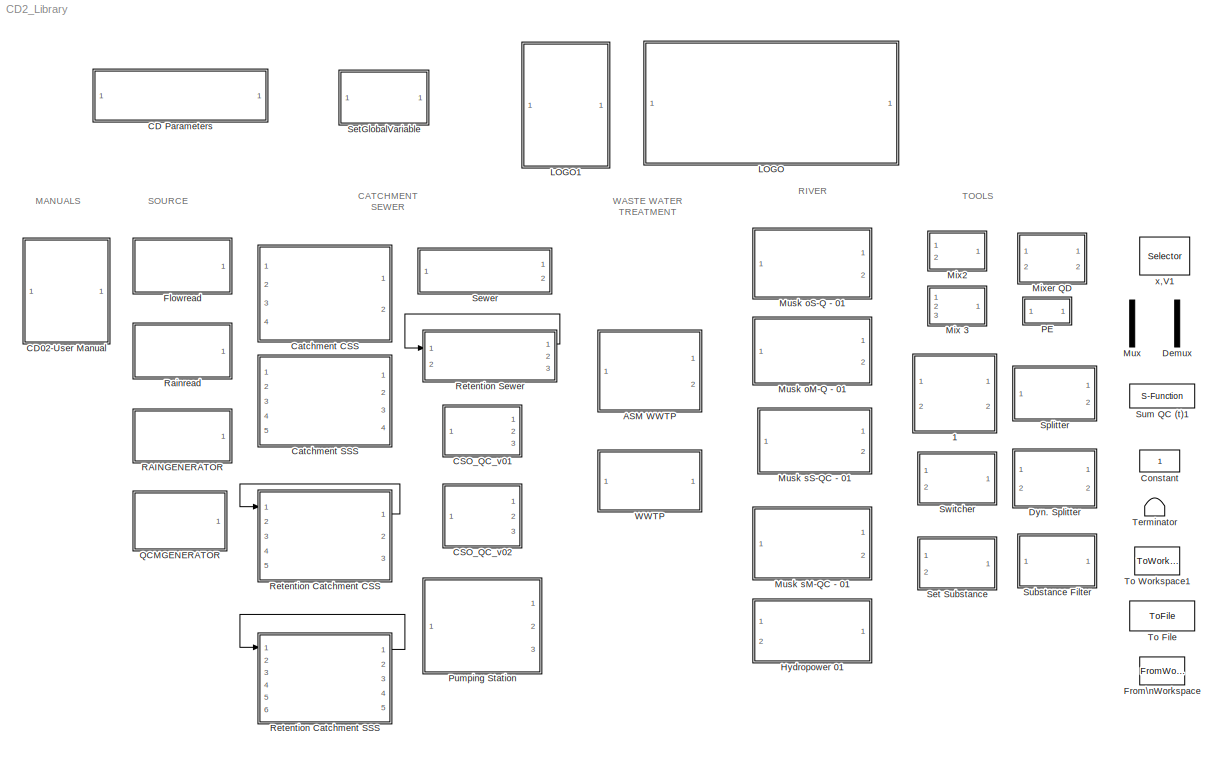
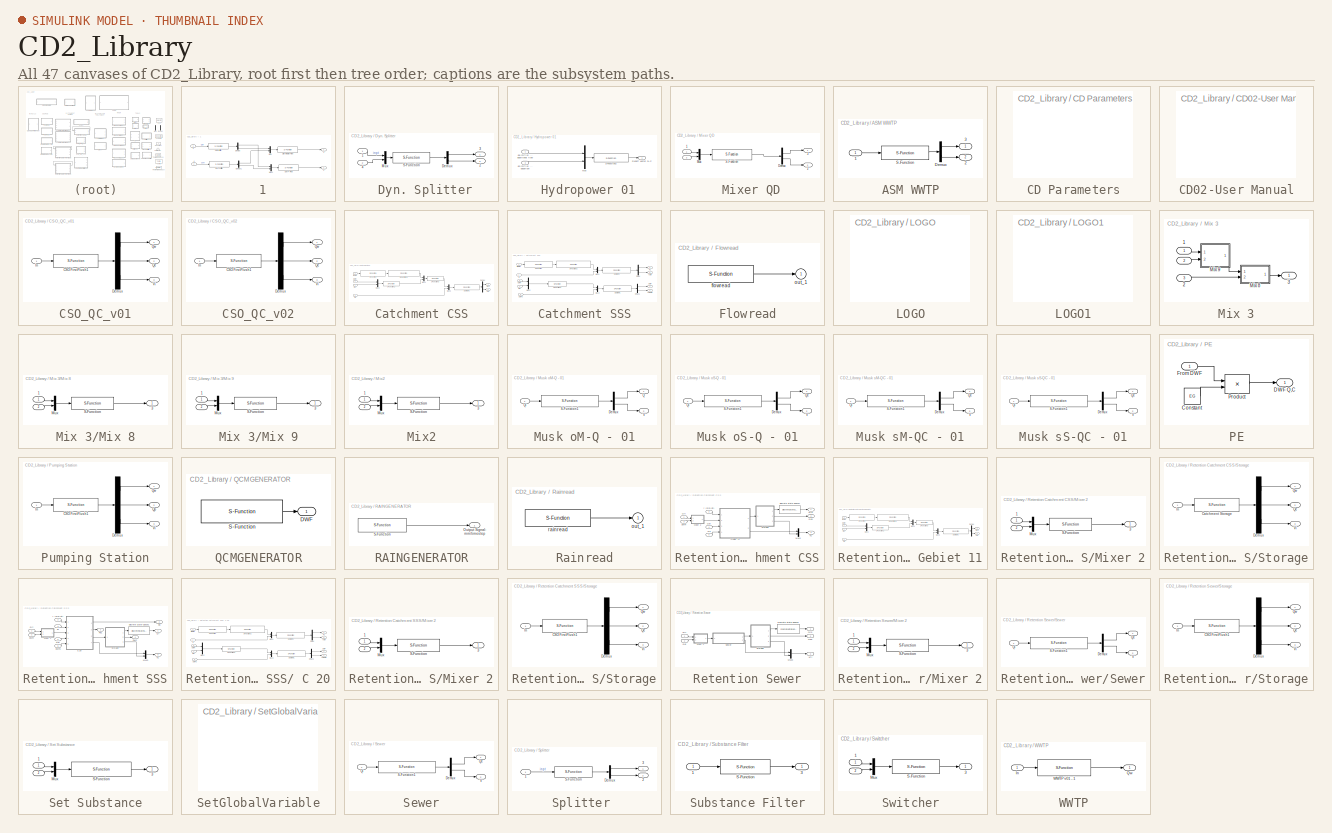
[diagram: thumbnail index - all 47 canvases of the model, root first then tree order]
MODEL CD2_Library
KIND model
CONFIG InitFcn = CD2_init
BLOCK [SubSystem]  1
  FunctionWithSeparateData = off
  MaskCallbackString = ||||
  MaskDescription = The block simulates wrong connections given in a seperate sewer system. MAgnitudes of wrong connections are described by fraction percentages (or quanities) diverted from or to the stormwater pipe.
  MaskDisplay = plot(0,0,100,100);\n\n\nplot([30,70],[30,30]);\nplot([30,70],[70,70]);\nplot([40,60],[30,70]);\nplot([40,60],[70,30]);\n\n\n\n\ntext(50,10,'WRONG Connect','HorizontalAlignment','center');\nport_label('input',1,'Qr');\nport_label('input',2,'Qdwf');\nport_label('output',1,'Qr');\nport_label('output',2,'Qdwf');\n
  MaskEnableString = on,on,on,on,on
  MaskHideContents = off
  MaskIconFrame = on
  MaskIconOpaque = on
  MaskIconRotate = none
  MaskIconUnits = autoscale
  MaskInitialization = % reading the toplevel systems' name \n% --> Plant file name;\ntls=bdroot(gcb); \n% Obtaining the fixed sampling time\nt_samp_char=get_param(tls, 'FixedStep');\n% Convertion to numeric value\ntstep = str2num(t_samp_char);  <repeated x20 — deduplicated; at blocks: 1, Dyn. Splitter, Mixer QD, ASM WWTP, CSO_QC_v01, CSO_QC_v02, Mix 3, Mix 8, Mix 9, Mix2, Mixer 2, Storage, Set Substance, Splitter, Substance Filter, Switcher>
  MaskPromptString = Number of components|Fraction Qr --> Qdwf|Splitting mode|Fraction Qdwf --> Qr|Splitting mode
  MaskStyleString = edit,edit,popup(Fraction [0-1]|Percent [0-100]|m³/s),edit,popup(Fraction [0-1]|Percent [0-100]|m³/s)
  MaskTabNameString = ,,,,
  MaskToolTipString = on,on,on,on,on
  MaskTunableValueString = on,on,on,on,on
  MaskType = Wrong Connect
  MaskValueString = CD2_get_substances_count|15|Percent [0-100]|23|Percent [0-100]
  MaskVarAliasString = ,,,,
  MaskVariables = n_comp=@1;values_rain=@2;mode_rain=@3;values_dwf=@4;mode_dwf=@5;
  MaskVisibilityString = on,on,on,on,on
  MinAlgLoopOccurrences = off
  Ports = [2, 2]
  RTWSystemCode = Auto
BLOCK [Inport]  1/ 1
  IconDisplay = Port number
BLOCK [Outport]  1/ 2
  BusOutputAsStruct = off
  IconDisplay = Port number
  Port = 2
BLOCK [Outport]  1/ 3
  BusOutputAsStruct = off
  IconDisplay = Port number
BLOCK [Inport]  1/ 4
  IconDisplay = Port number
  Port = 2
BLOCK [S-Function]  1/DWF - Pipe
  FunctionName = CD1_sfun_mixing_QC
  Parameters = n_comp,tstep
  Ports = [1, 1]
BLOCK [S-Function]  1/DWF splitter
  FunctionName = CD1_sfun_splitter
  Parameters = n_comp,values_dwf,mode_dwf,tstep
  Ports = [1, 1]
BLOCK [Demux]  1/Demux
  Outputs = 2
  Ports = [1, 2]
BLOCK [Demux]  1/Demux1
  Outputs = 2
  Ports = [1, 2]
BLOCK [Mux]  1/Mux
  DisplayOption = bar
  Inputs = 2
  Ports = [2, 1]
BLOCK [Mux]  1/Mux1
  DisplayOption = bar
  Inputs = 2
  Ports = [2, 1]
BLOCK [S-Function]  1/Rainsplitter
  FunctionName = CD1_sfun_splitter
  Parameters = n_comp,values_rain,mode_rain,tstep
  Ports = [1, 1]
BLOCK [S-Function]  1/Stormwater Pipe
  FunctionName = CD1_sfun_mixing_QC
  Parameters = n_comp,tstep
  Ports = [1, 1]
BLOCK [SubSystem]  Dyn. Splitter
  FunctionWithSeparateData = off
  MaskCallbackString = |
  MaskDescription = Splitter parameter.
  MaskDisplay = plot(0,0,100,100);\n\nplot([30,50],[50,50]);\nplot([50,70],[50,70]);\nplot([50,70],[50,30]);\n\ntext(50,10,'Dyn. SPLITTER','HorizontalAlignment','center');\nport_label('input',1,'Qi');\nport_label('output',1,'Q1');\nport_label('output',2,'Q2');\n
  MaskEnableString = on,on
  MaskHelp = Splits stream in 2 streams. Split by percent or by value.
  MaskHideContents = off
  MaskIconFrame = on
  MaskIconOpaque = on
  MaskIconRotate = none
  MaskIconUnits = autoscale
  MaskPromptString = Number of components|Splitting mode
  MaskStyleString = edit,popup(Fraction [0-1]|Percent [0-100]|m³/s)
  MaskTabNameString = ,
  MaskToolTipString = on,on
  MaskTunableValueString = on,on
  MaskType = Splitter
  MaskValueString = CD2_get_substances_count|Percent [0-100]
  MaskVarAliasString = ,
  MaskVariables = n_comp=@1;mode=@2;
  MaskVisibilityString = on,on
  MinAlgLoopOccurrences = off
  Ports = [2, 2]
  RTWSystemCode = Auto
BLOCK [Inport]  Dyn. Splitter/ 1
  IconDisplay = Port number
BLOCK [Outport]  Dyn. Splitter/ 2
  BusOutputAsStruct = off
  IconDisplay = Port number
  Port = 2
BLOCK [Outport]  Dyn. Splitter/ 3
  BusOutputAsStruct = off
  IconDisplay = Port number
BLOCK [Inport]  Dyn. Splitter/ 4
  IconDisplay = Port number
  Port = 2
BLOCK [Demux]  Dyn. Splitter/Demux
  Outputs = 2
  Ports = [1, 2]
BLOCK [Mux]  Dyn. Splitter/Mux
  DisplayOption = bar
  Inputs = [CD2_get_substance_count(subs_vect),n_comp+1]
  Ports = [2, 1]
BLOCK [S-Function]  Dyn. Splitter/S-Function
  FunctionName = CD1_sfun_splitter2
  Parameters = n_comp,mode,tstep
  Ports = [1, 1]
BLOCK [SubSystem]  Hydropower 01
  FunctionWithSeparateData = off
  MaskCallbackString = |
  MaskDescription = Hydropower block for modelling downstream release of water. Upstream concnetration of baseflow ( qo ) and additional flow ( qa ) are considered constant.\n\nUsed function:\nCD1_sfun_hydropower
  MaskDisplay = plot(0,0,100,100,\n[30 30 32 34 36 38 40 44 46 50],\n[28 60 62 65 67 70 70 67 65 25],\n[15 80],[30 20],\n[30 50],[34 30],[30 50],[38 34],\n[15 33],[65 65],\n[50 80],[45 40]\n);\ntext(50,90,'HYDROPOWER','HorizontalAlignment','center');\ntext(50,10,'baseflow','HorizontalAlignment','center');\nport_label('input',1,'qa');\nport_label('input',2,'qo');\nport_label('output',1,'Qe');
  MaskEnableString = on,on
  MaskHideContents = off
  MaskIconFrame = on
  MaskIconOpaque = on
  MaskIconRotate = none
  MaskIconUnits = autoscale
  MaskInitialization = \n\n% reading the toplevel systems' name \n% --> Plant file name;\ntls=bdroot(gcb); \n% Obtaining the fixed sampling time\nt_samp_char=get_param(tls, 'FixedStep');\n% Convertion to numeric value\ntstep = str2num(t_samp_char);
  MaskPromptString = No of components|Vector of Stream-Conc. g/m3
  MaskStyleString = edit,edit
  MaskTabNameString = ,
  MaskToolTipString = on,on
  MaskTunableValueString = on,on
  MaskType = HYDROPOWER
  MaskValueString = CD2_get_substances_count|[1 2 3]
  MaskVarAliasString = ,
  MaskVariables = n_comp=@1;C_Stream=@2;
  MaskVisibilityString = on,on
  MinAlgLoopOccurrences = off
  Ports = [2, 1]
  RTWSystemCode = Auto
BLOCK [Mux]  Hydropower 01/Mux
  DisplayOption = bar
  Inputs = 2
  Ports = [2, 1]
BLOCK [Outport]  Hydropower 01/Runoff vector Q,C
  BusOutputAsStruct = off
  IconDisplay = Port number
BLOCK [S-Function]  Hydropower 01/S-Function2
  FunctionName = CD1_sfun_hydropower
  Parameters = n_comp,C_Stream,tstep
  Ports = [1, 1]
BLOCK [Inport]  Hydropower 01/q0 [m³//s] ... baseflow
  IconDisplay = Port number
  Port = 2
BLOCK [Inport]  Hydropower 01/qa [m³//s] ... additional flow
  IconDisplay = Port number
BLOCK [SubSystem]  Mixer QD
  FunctionWithSeparateData = off
  MaskCallbackString = |
  MaskDescription = Performes mixing of pollutant fluxes Qw  and Qo in accordance to their hydraulic load. Qo is considered to be the less pollluted flux. In addition the required increase of Qo is calculated for meeting required MCL (maximum concentration limits) defined by user input. \n\nFunction used:\nCD1_sfun_mixing_QC_QD.m
  MaskDisplay = plot(0,0,100,100);\n\ntext(50,60,'Mixing','HorizontalAlignment','center');\ntext(50,35,'QD','HorizontalAlignment','center');\n\n\nport_label('input',1,'Qw');\nport_label('input',2,'Qo');\nport_label('output',1,'Qe');\nport_label('output',2,'QD');
  MaskEnableString = on,on
  MaskHideContents = off
  MaskIconFrame = on
  MaskIconOpaque = on
  MaskIconRotate = none
  MaskIconUnits = autoscale
  MaskPromptString = Number of pollutants [ - ]|MCL - Vector of max. concentration limits [g/m3]
  MaskStyleString = edit,edit
  MaskTabNameString = ,
  MaskToolTipString = on,on
  MaskTunableValueString = on,on
  MaskType = Mixer QD
  MaskValueString = CD2_get_substances_count|[3 3 3]
  MaskVarAliasString = ,
  MaskVariables = n_comp=@1;Cmcl=@2;
  MaskVisibilityString = on,on
  MinAlgLoopOccurrences = off
  Ports = [2, 2]
  RTWSystemCode = Auto
BLOCK [Inport]  Mixer QD/ 
  IconDisplay = Port number
  Port = 2
BLOCK [Inport]  Mixer QD/ 1
  IconDisplay = Port number
BLOCK [Outport]  Mixer QD/ 2
  BusOutputAsStruct = off
  IconDisplay = Port number
  Port = 2
BLOCK [Outport]  Mixer QD/ 3
  BusOutputAsStruct = off
  IconDisplay = Port number
BLOCK [Demux]  Mixer QD/Demux
  Outputs = [ (n_comp+1) (n_comp+1)]
  Ports = [1, 2]
BLOCK [Mux]  Mixer QD/Mux
  DisplayOption = bar
  Inputs = 2
  Ports = [2, 1]
BLOCK [S-Function]  Mixer QD/S-Function
  FunctionName = CD1_sfun_mixing_QC_QD
  Parameters = n_comp,tstep,Cmcl
  Ports = [1, 1]
BLOCK [SubSystem] ASM WWTP
  FunctionWithSeparateData = off
  MaskCallbackString = |||
  MaskDescription = WWTP unit that includes primray clarifier, biology and secondary clarifier. Biochemical modelling is based on a simplified ASM1 model.
  MaskDisplay = plot(0,0,100,100);\n\nplot(0,0,100,100);\n\npatch(\n[15,35,25,15],[55,55,30,55],[.6 0.6 .3]);\npatch(\n[40,60,60,40,40],[30,30,55,55,30],[.8 0.6 .3]);\npatch(\n[65,85,75,65],[55,55,30,55],[1 0.6 .3]);\n\nplot(\n[15,35,25,15],[55,55,30,55],\n[30, 40],[40,40],\n[40,60,60,40,40],[30,30,55,55,30],\n[65,85,75,65],[55,55,30,55],\n[60, 70],[40,40]\n);\n\n\n\ntext(50,70,'ASM-WWTP','HorizontalAlignment','c...<+107ch>
  MaskEnableString = on,on,on,on
  MaskHideContents = off
  MaskIconFrame = on
  MaskIconOpaque = on
  MaskIconRotate = none
  MaskIconUnits = autoscale
  MaskPromptString = WWTP File|delta t WWTP|Fraction sol [0-1]|Number of pollutants [ - ]
  MaskStyleString = edit,edit,edit,edit
  MaskTabNameString = ,,,
  MaskToolTipString = on,on,on,on
  MaskTunableValueString = on,on,on,on
  MaskType = ASM WWTP
  MaskValueString = 'wwtp_vils.txt'|30|[1 1 1]|CD2_get_substances_count
  MaskVarAliasString = ,,,
  MaskVariables = wwtpfile=@1;dtwwtp=@2;frac=@3;n_comp=@4;
  MaskVisibilityString = on,on,on,on
  MinAlgLoopOccurrences = off
  Ports = [1, 2]
  RTWSystemCode = Auto
BLOCK [Inport] ASM WWTP/ 1
  IconDisplay = Port number
BLOCK [Outport] ASM WWTP/ 2
  BusOutputAsStruct = off
  IconDisplay = Port number
  Port = 2
BLOCK [Outport] ASM WWTP/ 3
  BusOutputAsStruct = off
  IconDisplay = Port number
BLOCK [Demux] ASM WWTP/Demux
  DisplayOption = bar
  Outputs = [n_comp+1,11]
  Ports = [1, 2]
BLOCK [S-Function] ASM WWTP/S-Function
  FunctionName = CD2_sfun_rumba_wwtp
  Parameters = frac,n_comp,wwtpfile,dtwwtp,tstep
  Ports = [1, 1]
BLOCK [SubSystem] CD Parameters
  FunctionWithSeparateData = off
  MaskCallbackString = |||
  MaskDescription = Block that sets the global parameters required in City Drain 2.0. Following paramters are set without user's input:\n\n- 'Solver' --> 'FixedStepDiscrete'\n- 'TimeSaveName' --> 'cd_time'\n- 'Decimation' --> '1'\n- 'LimitDataPoints' -->  'off'
  MaskDisplay = \nplot(0,0,100,100);\n\ntext(50,65,'CITY DRAIN','HorizontalAlignment','center');\ntext(50,35,'PARAMETERS','HorizontalAlignment','center');\n\n\nimage(imread('CityDrain_SimParam.jpg'))\n\n
  MaskEnableString = on,on,on,on
  MaskHideContents = off
  MaskIconFrame = on
  MaskIconOpaque = on
  MaskIconRotate = none
  MaskIconUnits = autoscale
  MaskInitialization = % toplevel systems' name --> Plant file name;\ntls=bdroot(gcb); \nset_param(tls, 'Solver', 'FixedStepDiscrete'); \nset_param(tls, 'TimeSaveName', 'cd_time');\nset_param(tls, 'Decimation', '1');\nset_param(tls, 'LimitDataPoints', 'off');\nset_param(tls, 'ScreenColor', 'white');\n\ntstep_char=num2str(t_step); % Setting the discrete time step\nset_param(tls, 'FixedStep', tstep_char); \n\ntstart_char=...<+222ch>
  MaskPromptString = Modell Substances list (string)|Sampling Time [s]|Start Time [s]|Stop Time [s]
  MaskStyleString = edit,edit,edit,edit
  MaskTabNameString = ,,,
  MaskToolTipString = on,on,on,on
  MaskTunableValueString = on,on,on,on
  MaskType = City Drain 2.0 - Simulation parameters
  MaskValueString = 'HCO3 NH4'|300|0|7200
  MaskVarAliasString = ,,,
  MaskVariables = subst=@1;t_step=@2;t_start=@3;t_stop=@4;
  MaskVisibilityString = on,on,on,on
  MinAlgLoopOccurrences = off
  Ports = []
  RTWSystemCode = Auto
BLOCK [SubSystem] CD02-User Manual
  FunctionWithSeparateData = off
  MaskDisplay = \n\ntext(50,70,'CITY DRAIN 1.0','HorizontalAlignment','center');\ntext(50,40,'User Manual','HorizontalAlignment','center');\nimage(imread('CD1_start_user_manual.jpg'));\n
  MaskHideContents = off
  MaskIconFrame = on
  MaskIconOpaque = on
  MaskIconRotate = none
  MaskIconUnits = autoscale
  MaskInitialization = \n
  MaskType = Open Usermanual
  MinAlgLoopOccurrences = off
  OpenFcn = open('CD2_UserManual_2007.pdf');
  Ports = []
  RTWSystemCode = Auto
  ShowPortLabels = off
BLOCK [SubSystem] CSO_QC_v01
  FunctionWithSeparateData = off
  MaskCallbackString = ||
  MaskDescription = Combined sewer overflow structure. \nDiverts the inflow given into effluent and overflow. The model implemented consideres hydraulics and pollutant routing by full mixing in the structure. \n\nFunction used:\nCD1_sfun_cso_A.m
  MaskDisplay = plot(0,0,100,100);\n\ntext(50,60,'CSO','HorizontalAlignment','center');\ntext(50,30,'Typ A','HorizontalAlignment','center');\n\n\nport_label('input',1,'Qi');\nport_label('output',1,'Qw');\nport_label('output',2,'Qe');\nport_label('output',3,'Vi');\n
  MaskEnableString = on,on,on
  MaskHideContents = off
  MaskIconFrame = on
  MaskIconOpaque = on
  MaskIconRotate = none
  MaskIconUnits = autoscale
  MaskPromptString = Basin Volume [m3]|Maximum Effluent flow [m3/s]|Number of Pollutants [-]
  MaskStyleString = edit,edit,edit
  MaskTabNameString = ,,
  MaskToolTipString = on,on,on
  MaskTunableValueString = on,on,on
  MaskType = CSO Typ A - Combined sewer overflow
  MaskValueString = 300|0.1|CD2_get_substances_count
  MaskVarAliasString = ,,
  MaskVariables = Vmax=@1;Qemax=@2;n_comp=@3;
  MaskVisibilityString = on,on,on
  MinAlgLoopOccurrences = off
  Ports = [1, 3]
  RTWSystemCode = Auto
BLOCK [S-Function] CSO_QC_v01/CSO FirstFlush1
  FunctionName = CD1_sfun_cso_A
  Parameters = Vmax,Qemax,n_comp,tstep
  Ports = [1, 1]
BLOCK [Demux] CSO_QC_v01/Demux
  Outputs = [ (n_comp+1) (n_comp+1) (n_comp+1)]
  Ports = [1, 3]
BLOCK [Inport] CSO_QC_v01/In
  IconDisplay = Port number
BLOCK [Outport] CSO_QC_v01/Qe
  BusOutputAsStruct = off
  IconDisplay = Port number
  Port = 2
BLOCK [Outport] CSO_QC_v01/Qw
  BusOutputAsStruct = off
  IconDisplay = Port number
BLOCK [Outport] CSO_QC_v01/Vi
  BusOutputAsStruct = off
  IconDisplay = Port number
  Port = 3
BLOCK [SubSystem] CSO_QC_v02
  FunctionWithSeparateData = off
  MaskCallbackString = |||
  MaskDescription = Combined sewer overflow structure. \nDiverts the inflow given into effluent and overflow. The model implemented consideres hydraulics and pollutant routing by full mixing in the structure. \n\nIn addition to Type A a retenetion/sedimentation factor is introduced. The factor may be used for applying different ratios in pollutant concentration for effluent flow (QE) and overflow (QW).\n\nFunction us...<+21ch>  <repeated x4 — deduplicated; at blocks: CSO_QC_v02, Storage>
  MaskDisplay = \nplot(0,0,100,100);\n\n\ntext(50,60,'CSO','HorizontalAlignment','center');\ntext(50,30,'Typ B','HorizontalAlignment','center');\n\n\nport_label('input',1,'Qi');\nport_label('output',1,'Qw');\nport_label('output',2,'Qe');\nport_label('output',3,'Vi');\n  <repeated x4 — deduplicated; at blocks: CSO_QC_v02, Storage>
  MaskEnableString = on,on,on,on
  MaskHideContents = off
  MaskIconFrame = on
  MaskIconOpaque = on
  MaskIconRotate = port
  MaskIconUnits = autoscale
  MaskPromptString = Basin Volume (m3)|Maximum Effluent flow [m3/s]|Number of Pollutants [-]|n-sed (Vect. of Sed. Coefficients)
  MaskStyleString = edit,edit,edit,edit
  MaskTabNameString = ,,,
  MaskToolTipString = on,on,on,on
  MaskTunableValueString = on,on,on,on
  MaskType = CSO Typ B - Combined sewer overflow
  MaskValueString = 300|0.1|CD2_get_substances_count|[0.2]
  MaskVarAliasString = ,,,
  MaskVariables = Vmax=@1;Qemax=@2;n_comp=@3;n_sed=@4;
  MaskVisibilityString = on,on,on,on
  MinAlgLoopOccurrences = off
  Ports = [1, 3]
  RTWSystemCode = Auto
BLOCK [S-Function] CSO_QC_v02/CSO FirstFlush1
  FunctionName = CD1_sfun_cso_B
  Parameters = Vmax,Qemax,n_comp,n_sed,tstep
  Ports = [1, 1]
BLOCK [Demux] CSO_QC_v02/Demux
  Outputs = [ (n_comp+1) (n_comp+1) (n_comp+1)]
  Ports = [1, 3]
BLOCK [Inport] CSO_QC_v02/In
  IconDisplay = Port number
BLOCK [Outport] CSO_QC_v02/Qe
  BusOutputAsStruct = off
  IconDisplay = Port number
  Port = 2
BLOCK [Outport] CSO_QC_v02/Qw
  BusOutputAsStruct = off
  IconDisplay = Port number
BLOCK [Outport] CSO_QC_v02/Vi
  BusOutputAsStruct = off
  IconDisplay = Port number
  Port = 3
BLOCK [SubSystem] Catchment CSS
  FunctionWithSeparateData = off
  MaskCallbackString = ||||||||
  MaskDescription = Hydrological model of an urban catchment with a combined sewer system. \n--> see manual for more details
  MaskDisplay = plot(0,0,100,100,\n[17 20 25 30 40 45 50 55 60 65]+x,\n[60 80 82 85 88 88 88 85 75 60]+y);\nplot(0,0,100,100,\n[17 20 25 30 40 45 50 55 60 65]+x,\n[55 40 35 30 30 30 30 35 40 55]+y);\n\nplot([20 65]+x,[60 60]+y);\nplot([20 30]+x,[80 60]+y);\nplot([30 40]+x,[75 60]+y);\nplot([45 60]+x,[75 60]+y);\nplot([20 65]+x,[55 55]+y);\nplot([20 30]+x,[40 55]+y);\nplot([30 40]+x,[45 55]+y);\nplot([45 60]+x,[30...<+274ch>
  MaskEnableString = on,on,on,on,on,on,on,on,on
  MaskHideContents = off
  MaskIconFrame = on
  MaskIconOpaque = on
  MaskIconRotate = port
  MaskIconUnits = autoscale
  MaskInitialization = % location of catchment drawing\nx=10;\ny=-10;\n% reading the toplevel systems' name \n% --> Plant file name;\ntls=bdroot(gcb); \n% Obtaining the fixed sampling time\nt_samp_char=get_param(tls, 'FixedStep');\n% Convertion to numeric value\ntstep = str2num(t_samp_char); \n\n%convertion form mm/day --> mm/DT\npermloss=permloss/86400*tstep;\narea=area*10000;\n\n%parameter for muskingum\nCX=(tstep/2-K...<+51ch>  <repeated x4 — deduplicated; at blocks: Catchment CSS, Catchment SSS, Gebiet 11, C 20>
  MaskPromptString = Area in [ha]|Runoff coefficient (0 - 1)|Initial Loss in [mm]|Permanent loss in [mm/day]|No of Timesteps (transport time) / No of subareas n [-]|No of pollutant components|Vector of Rain-Conc. [g/m3]|K|X  <repeated x4 — deduplicated; at blocks: Catchment CSS, Catchment SSS, Gebiet 11, C 20>
  MaskStyleString = edit,edit,edit,edit,edit,edit,edit,edit,edit
  MaskTabNameString = ,,,,,,,,
  MaskToolTipString = on,on,on,on,on,on,on,on,on
  MaskTunableValueString = on,on,on,on,on,on,on,on,on
  MaskType = Catchment CSS
  MaskValueString = 208|0.20|1|1.25|3|CD2_get_substances_count|1|300|0
  MaskVarAliasString = ,,,,,,,,
  MaskVariables = area=@1;rfcoeff=@2;initloss=@3;permloss=@4;N=@5;n_comp=@6;Rain_C=@7;K=@8;X=@9;
  MaskVisibilityString = on,on,on,on,on,on,on,on,on
  MinAlgLoopOccurrences = off
  Ports = [4, 2]
  RTWSystemCode = Auto
BLOCK [Inport] Catchment CSS/DWFl
  IconDisplay = Port number
  Port = 2
BLOCK [Demux] Catchment CSS/Demux
  DisplayOption = bar
  Outputs = [n_comp+1,N*(n_comp+1)]
  Ports = [1, 2]
BLOCK [Mux] Catchment CSS/Mux1
  DisplayOption = bar
  Inputs = [n_comp+1,n_comp+1]
  Ports = [2, 1]
BLOCK [Mux] Catchment CSS/Mux2
  DisplayOption = bar
  Inputs = [n_comp+1,n_comp+1]
  Ports = [2, 1]
BLOCK [Mux] Catchment CSS/Mux3
  DisplayOption = bar
  Inputs = [n_comp+1,n_comp+1]
  Ports = [2, 1]
BLOCK [Inport] Catchment CSS/Qe
  IconDisplay = Port number
  Port = 4
BLOCK [Outport] Catchment CSS/Qe1
  BusOutputAsStruct = off
  IconDisplay = Port number
BLOCK [Inport] Catchment CSS/Qpl
  IconDisplay = Port number
  Port = 3
BLOCK [S-Function] Catchment CSS/S-Function
  FunctionName = CD1_sfun_catchment_lossmodel
  Parameters = initloss,permloss,rfcoeff
  Ports = [1, 1]
BLOCK [S-Function] Catchment CSS/S-Function1
  FunctionName = CD1_sfun_catchment_flowmodel_SW
  Parameters = area,n_comp,Rain_C,tstep
  Ports = [1, 1]
BLOCK [S-Function] Catchment CSS/S-Function2
  FunctionName = CD1_sfun_mixing_QC
  Parameters = n_comp,tstep
  Ports = [1, 1]
BLOCK [S-Function] Catchment CSS/S-Function3
  FunctionName = CD1_sfun_mixing_QC
  Parameters = n_comp,tstep
  Ports = [1, 1]
BLOCK [S-Function] Catchment CSS/SEWER2
  FunctionName = CD1_sfun_Muskingum_Catchment
  MaskIconFrame = on
  MaskIconOpaque = on
  MaskIconRotate = none
  MaskIconUnits = autoscale
  MaskInitialization = \n
  Parameters = tstep, CX, CY, n_comp,N
  Ports = [1, 1]
BLOCK [Outport] Catchment CSS/VCi
  BusOutputAsStruct = off
  IconDisplay = Port number
  Port = 2
BLOCK [Inport] Catchment CSS/r (mm//dt)
  IconDisplay = Port number
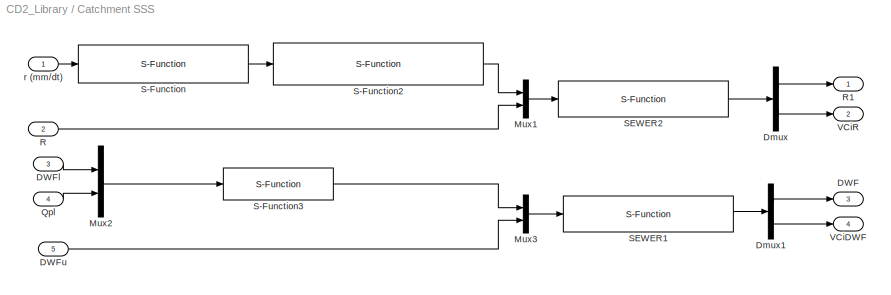
BLOCK [SubSystem] Catchment SSS
  FunctionWithSeparateData = off
  MaskCallbackString = ||||||||
  MaskDescription = Hydrological model of an urban catchment with a separate sewer system. \n--> see manual for more details
  MaskDisplay = plot(0,0,100,100,\n[17 20 25 30 40 50 55 60 70 75 80]+x,\n[60 80 82 85 88 88 88 85 82 75 60]+y);\n\nplot([20 80]+x,[60 60]+y);\nplot([20 30]+x,[80 60]+y);\nplot([30 40]+x,[75 60]+y);\nplot([45 60]+x,[75 60]+y);\n\ncolor('white');\nplot([20 80]+x,[55 55]+y);\nplot([20 30]+x,[40 55]+y);\nplot([30 40]+x,[45 55]+y);\nplot([45 60]+x,[30 55]+y);\n\ncolor('black');\n\nport_label('input',1,'rl');\nport_la...<+308ch>
  MaskEnableString = on,on,on,on,on,on,on,on,on
  MaskHideContents = off
  MaskIconFrame = on
  MaskIconOpaque = on
  MaskIconRotate = none
  MaskIconUnits = autoscale
  MaskStyleString = edit,edit,edit,edit,edit,edit,edit,edit,edit
  MaskTabNameString = ,,,,,,,,
  MaskToolTipString = on,on,on,on,on,on,on,on,on
  MaskTunableValueString = on,on,on,on,on,on,on,on,on
  MaskType = Catchment SSS
  MaskValueString = 27|0.16|1|1.25|6|CD2_get_substances_count|1|300|0
  MaskVarAliasString = ,,,,,,,,
  MaskVariables = area=@1;rfcoeff=@2;initloss=@3;permloss=@4;N=@5;n_comp=@6;Rain_C=@7;K=@8;X=@9;
  MaskVisibilityString = on,on,on,on,on,on,on,on,on
  MinAlgLoopOccurrences = off
  Ports = [5, 4]
  RTWSystemCode = Auto
BLOCK [Outport] Catchment SSS/DWF 
  BusOutputAsStruct = off
  IconDisplay = Port number
  Port = 3
BLOCK [Inport] Catchment SSS/DWFl
  IconDisplay = Port number
  Port = 3
BLOCK [Inport] Catchment SSS/DWFu
  IconDisplay = Port number
  Port = 5
BLOCK [Demux] Catchment SSS/Dmux
  DisplayOption = bar
  Outputs = [n_comp+1,N*(n_comp+1)]
  Ports = [1, 2]
BLOCK [Demux] Catchment SSS/Dmux1
  DisplayOption = bar
  Outputs = [n_comp+1,N*(n_comp+1)]
  Ports = [1, 2]
BLOCK [Mux] Catchment SSS/Mux1
  DisplayOption = bar
  Inputs = [n_comp+1,n_comp+1]
  Ports = [2, 1]
BLOCK [Mux] Catchment SSS/Mux2
  DisplayOption = bar
  Inputs = [n_comp+1,n_comp+1]
  Ports = [2, 1]
BLOCK [Mux] Catchment SSS/Mux3
  DisplayOption = bar
  Inputs = [n_comp+1,n_comp+1]
  Ports = [2, 1]
BLOCK [Inport] Catchment SSS/Qpl
  IconDisplay = Port number
  Port = 4
BLOCK [Inport] Catchment SSS/R
  IconDisplay = Port number
  Port = 2
BLOCK [Outport] Catchment SSS/R1
  BusOutputAsStruct = off
  IconDisplay = Port number
BLOCK [S-Function] Catchment SSS/S-Function
  FunctionName = CD1_sfun_catchment_lossmodel
  Parameters = initloss,permloss,rfcoeff
  Ports = [1, 1]
BLOCK [S-Function] Catchment SSS/S-Function2
  FunctionName = CD1_sfun_catchment_flowmodel_SW
  Parameters = area,n_comp,Rain_C,tstep
  Ports = [1, 1]
BLOCK [S-Function] Catchment SSS/S-Function3
  FunctionName = CD1_sfun_mixing_QC
  Parameters = n_comp,tstep
  Ports = [1, 1]
BLOCK [S-Function] Catchment SSS/SEWER1
  FunctionName = CD1_sfun_Muskingum_Catchment
  MaskIconFrame = on
  MaskIconOpaque = on
  MaskIconRotate = none
  MaskIconUnits = autoscale
  MaskInitialization = \n
  Parameters = tstep, CX, CY, n_comp,N
  Ports = [1, 1]
BLOCK [S-Function] Catchment SSS/SEWER2
  FunctionName = CD1_sfun_Muskingum_Catchment
  MaskIconFrame = on
  MaskIconOpaque = on
  MaskIconRotate = none
  MaskIconUnits = autoscale
  MaskInitialization = \n
  Parameters = tstep, CX, CY, n_comp,N
  Ports = [1, 1]
BLOCK [Outport] Catchment SSS/VCiDWF
  BusOutputAsStruct = off
  IconDisplay = Port number
  Port = 4
BLOCK [Outport] Catchment SSS/VCiR
  BusOutputAsStruct = off
  IconDisplay = Port number
  Port = 2
BLOCK [Inport] Catchment SSS/r (mm//dt)
  IconDisplay = Port number
BLOCK [Constant] Constant
  ConRadixGroup = Use specified scaling
  FramePeriod = inf
  OutDataType = sfix(16)
  OutDataTypeMode = Inherit from 'Constant value'
  OutScaling = 2^0
  SampleTime = inf
  SamplingMode = Sample based
  Value = 1
  VectorParams1D = on
BLOCK [Demux] Demux
  DisplayOption = bar
  Outputs = [13,1]
  Ports = [1, 2]
BLOCK [SubSystem] Flowread
  FunctionWithSeparateData = off
  MaskCallbackString = ||
  MaskDescription = Reads flowdata (Q) and substance concentration (Ci) associated from ascii file. \n\nUsed function: \nCD1_sfun_flowread.m\nCD1_mfun_flowread.m
  MaskDisplay = \nplot(0,0,100,100);\n\ntext(50,20,'FLOWREAD','HorizontalAlignment','center');\n\nplot(\n[5 10 10 15 15 20 20 25 25 30 30 35 35 40],\n[0 0 10 10 20 20 40 40 20 20 0 0 0 0]+50);\nplot(\n[5 10 15 20 25 30 35 ]+50,\n[0 5 10 15 30 20 0]+50);
  MaskEnableString = on,on,on
  MaskHideContents = off
  MaskIconFrame = on
  MaskIconOpaque = on
  MaskIconRotate = none
  MaskIconUnits = autoscale
  MaskInitialization = table=CD1_mfun_flowread(table0);\n\n\n% reading the toplevel systems' name \n% --> Plant file name;\ntls=bdroot(gcb); \n% Obtaining the fixed sampling time\nt_samp_char=get_param(tls, 'FixedStep');\n% Convertion to numeric value\ntstep = str2num(t_samp_char); \n
  MaskPromptString = Filename|Data type|Cylic repitition
  MaskStyleString = edit,popup(Composite sample|Grab sample),checkbox
  MaskTabNameString = ,,
  MaskToolTipString = on,on,on
  MaskTunableValueString = on,on,on
  MaskType = CD1_Flowread
  MaskValueString = 'Input_CSO_QC_Test_01.txt'|Composite sample|off
  MaskVarAliasString = ,,
  MaskVariables = table0=@1;dtype=&2;crep=&3;
  MaskVisibilityString = on,on,on
  MinAlgLoopOccurrences = off
  Ports = [0, 1]
  RTWSystemCode = Auto
  ShowPortLabels = off
BLOCK [S-Function] Flowread/flowread
  FunctionName = CD1_sfun_flowread
  MaskIconFrame = on
  MaskIconOpaque = on
  MaskIconRotate = none
  MaskIconUnits = autoscale
  Parameters = dtype,crep,table,tstep
  Ports = [0, 1]
BLOCK [Outport] Flowread/out_1
  BusOutputAsStruct = off
  IconDisplay = Port number
BLOCK [FromWorkspace] From\nWorkspace
  OutputAfterFinalValue = Setting to zero
  VariableName = yin
BLOCK [SubSystem] LOGO
  FunctionWithSeparateData = off
  MaskDescription = Displays the City Drain Logo in Color\n\nSource file: \nCityDrainLogo_C1.jpg
  MaskDisplay = image(imread('CityDrain 2Logo_C1.jpg'));\n
  MaskHideContents = off
  MaskIconFrame = off
  MaskIconOpaque = on
  MaskIconRotate = none
  MaskIconUnits = autoscale
  MaskType = LOGO CITY DRAIN
  MinAlgLoopOccurrences = off
  Ports = []
  RTWSystemCode = Auto
BLOCK [SubSystem] LOGO1
  FunctionWithSeparateData = off
  MaskDescription = Displays the City Drain Logo in Color\n\nSource file: \nCityDrainLogo_C1.jpg
  MaskDisplay = image(imread('LOGO_IUT4C.jpg'));\n
  MaskHideContents = off
  MaskIconFrame = off
  MaskIconOpaque = on
  MaskIconRotate = none
  MaskIconUnits = autoscale
  MaskType = LOGO CITY DRAIN
  MinAlgLoopOccurrences = off
  Ports = []
  RTWSystemCode = Auto
BLOCK [SubSystem] Mix 3
  FunctionWithSeparateData = off
  MaskDescription = Performes mixing of pollutant fluxes Q1 and Q2 in accordance to their hydraulic load.\n\nFunction used:\nCD1_sfun_mixing_QC.m
  MaskDisplay = plot(0,0,100,100);\n\ntext(50,50,'Mix3','HorizontalAlignment','center');\n\n\nport_label('input',1,'Q1');\nport_label('input',2,'Q2');\nport_label('input',3,'Q3');\nport_label('output',1,'Qe');\n
  MaskEnableString = on
  MaskHideContents = off
  MaskIconFrame = on
  MaskIconOpaque = on
  MaskIconRotate = none
  MaskIconUnits = autoscale
  MaskPromptString = Number of pollutants [ - ]
  MaskStyleString = edit
  MaskToolTipString = on
  MaskTunableValueString = on
  MaskType = Mixer
  MaskValueString = CD2_get_substances_count
  MaskVariables = n_comp=@1;
  MaskVisibilityString = on
  MinAlgLoopOccurrences = off
  Ports = [3, 1]
  RTWSystemCode = Auto
BLOCK [Inport] Mix 3/ 
  IconDisplay = Port number
  Port = 2
BLOCK [Inport] Mix 3/ 1
  IconDisplay = Port number
BLOCK [Inport] Mix 3/ 2
  IconDisplay = Port number
  Port = 3
BLOCK [Outport] Mix 3/ 3
  BusOutputAsStruct = off
  IconDisplay = Port number
BLOCK [SubSystem] Mix 3/Mix 8
  FunctionWithSeparateData = off
  MaskDescription = Performes mixing of pollutant fluxes Q1 and Q2 in accordance to their hydraulic load.\n\nFunction used:\nCD1_sfun_mixing_QC.m
  MaskDisplay = plot(0,0,100,100);\n\ntext(50,50,'Mix','HorizontalAlignment','center');\n\n\nport_label('input',1,'Q1');\nport_label('input',2,'Q2');\nport_label('output',1,'Qe');\n
  MaskEnableString = on
  MaskHideContents = off
  MaskIconFrame = on
  MaskIconOpaque = on
  MaskIconRotate = none
  MaskIconUnits = autoscale
  MaskPromptString = Number of pollutants [ - ]
  MaskStyleString = edit
  MaskToolTipString = on
  MaskTunableValueString = on
  MaskType = Mixer
  MaskValueString = n_comp
  MaskVariables = n_comp=@1;
  MaskVisibilityString = on
  MinAlgLoopOccurrences = off
  Ports = [2, 1]
  RTWSystemCode = Auto
BLOCK [Inport] Mix 3/Mix 8/ 
  IconDisplay = Port number
  Port = 2
BLOCK [Inport] Mix 3/Mix 8/ 1
  IconDisplay = Port number
BLOCK [Outport] Mix 3/Mix 8/ 3
  BusOutputAsStruct = off
  IconDisplay = Port number
BLOCK [Mux] Mix 3/Mix 8/Mux
  DisplayOption = bar
  Inputs = [n_comp+1,n_comp+1]
  Ports = [2, 1]
BLOCK [S-Function] Mix 3/Mix 8/S-Function
  FunctionName = CD1_sfun_mixing_QC
  Parameters = n_comp,tstep
  Ports = [1, 1]
BLOCK [SubSystem] Mix 3/Mix 9
  FunctionWithSeparateData = off
  MaskDescription = Performes mixing of pollutant fluxes Q1 and Q2 in accordance to their hydraulic load.\n\nFunction used:\nCD1_sfun_mixing_QC.m
  MaskDisplay = plot(0,0,100,100);\n\ntext(50,50,'Mix','HorizontalAlignment','center');\n\n\nport_label('input',1,'Q1');\nport_label('input',2,'Q2');\nport_label('output',1,'Qe');\n
  MaskEnableString = on
  MaskHideContents = off
  MaskIconFrame = on
  MaskIconOpaque = on
  MaskIconRotate = none
  MaskIconUnits = autoscale
  MaskPromptString = Number of pollutants [ - ]
  MaskStyleString = edit
  MaskToolTipString = on
  MaskTunableValueString = on
  MaskType = Mixer
  MaskValueString = n_comp
  MaskVariables = n_comp=@1;
  MaskVisibilityString = on
  MinAlgLoopOccurrences = off
  Ports = [2, 1]
  RTWSystemCode = Auto
BLOCK [Inport] Mix 3/Mix 9/ 
  IconDisplay = Port number
  Port = 2
BLOCK [Inport] Mix 3/Mix 9/ 1
  IconDisplay = Port number
BLOCK [Outport] Mix 3/Mix 9/ 3
  BusOutputAsStruct = off
  IconDisplay = Port number
BLOCK [Mux] Mix 3/Mix 9/Mux
  DisplayOption = bar
  Inputs = [n_comp+1,n_comp+1]
  Ports = [2, 1]
BLOCK [S-Function] Mix 3/Mix 9/S-Function
  FunctionName = CD1_sfun_mixing_QC
  Parameters = n_comp,tstep
  Ports = [1, 1]
BLOCK [SubSystem] Mix2
  FunctionWithSeparateData = off
  MaskDescription = Performes mixing of pollutant fluxes Q1 and Q2 in accordance to their hydraulic load.\n\nFunction used:\nCD1_sfun_mixing_QC.m
  MaskDisplay = plot(0,0,100,100);\n\ntext(50,50,'Mix2','HorizontalAlignment','center');\n\n\nport_label('input',1,'Q1');\nport_label('input',2,'Q2');\nport_label('output',1,'Qe');\n
  MaskEnableString = on
  MaskHideContents = off
  MaskIconFrame = on
  MaskIconOpaque = on
  MaskIconRotate = port
  MaskIconUnits = autoscale
  MaskPromptString = Number of pollutants [ - ]
  MaskStyleString = edit
  MaskToolTipString = on
  MaskTunableValueString = on
  MaskType = Mixer
  MaskValueString = CD2_get_substances_count
  MaskVariables = n_comp=@1;
  MaskVisibilityString = on
  MinAlgLoopOccurrences = off
  Ports = [2, 1]
  RTWSystemCode = Auto
BLOCK [Inport] Mix2/ 
  IconDisplay = Port number
  Port = 2
BLOCK [Inport] Mix2/ 1
  IconDisplay = Port number
BLOCK [Outport] Mix2/ 3
  BusOutputAsStruct = off
  IconDisplay = Port number
BLOCK [Mux] Mix2/Mux
  DisplayOption = bar
  Inputs = [n_comp+1,n_comp+1]
  Ports = [2, 1]
BLOCK [S-Function] Mix2/S-Function
  FunctionName = CD1_sfun_mixing_QC
  Parameters = n_comp,tstep
  Ports = [1, 1]
BLOCK [SubSystem] Musk oM-Q - 01
  FunctionWithSeparateData = off
  MaskCallbackString = ||
  MaskDescription = Flood routing using the original scheme by Muskingum-Cunge for multiple river stretches for hydraulic routing only.\nThe block accepts flow inputs and returns effluent fluxes and current stated of retained volume.\nIntial Conditions: V=0; and Qe=0;\n\nFunction used:\nCD1_sfun_Muskingum_oM_Q.m
  MaskDisplay = \nplot(0,0,100,100,\n[20,30,40,50,60,70,80]+x,\n[35,40,45,50,45,40,45]+y,\n[20,30,40,50,60,70,80]+x,\n[75,85,90,95,90,85,90]+y,\n[30,30]+x,[40,85]+y,\n[50,50]+x,[50,95]+y,\n[70,70]+x,[40,85]+y\n);\n\nplot(\n[10,10,15,15,20,15,15,10]+m(1),\n[40,30,30,22,35,48,40,40]+m(2),\n[10,10,15,15,20,15,15,10]+l(1),\n[40,30,30,22,35,48,40,40]+l(2)\n);\n\ntext(40+x,65+y,'j');\ntext(55+x,65+y,'j+1');\n\ntext(50,...<+199ch>
  MaskEnableString = on,on,on
  MaskHideContents = off
  MaskIconFrame = on
  MaskIconOpaque = on
  MaskIconRotate = none
  MaskIconUnits = autoscale
  MaskInitialization = m=[5,5];%Offset for arrow \nl=[65,15];%Offset for arrow \nx=0; \ny=-15; %Offset for river\n\n% reading the toplevel systems' name-> Plant file name;\ntls=bdroot(gcb); \n% Obtaining the fixed sampling time\ntstep_char=get_param(tls, 'FixedStep');\n% Convertion to numeric value\ndt = str2num(tstep_char); \n\n\n\n%Muskingum parameters\nD=K.*(1-X)+0.5.*dt;\nC0=(0.5.*dt-K.*X)./D;\nC1=(0.5.*dt+K.*X)./D;...<+29ch>
  MaskPromptString = K (travel time of one subreach) [ s ]|X (weighing factor) [ - ]|N (Number of sub-reaches) [ - ]
  MaskStyleString = edit,edit,edit
  MaskTabNameString = ,,
  MaskToolTipString = on,on,on
  MaskTunableValueString = on,on,on
  MaskType = Muskingum - Cunge flood rooting (original scheme)
  MaskValueString = 900|0.2|2
  MaskVarAliasString = ,,
  MaskVariables = K=@1;X=@2;N=@3;
  MaskVisibilityString = on,on,on
  MinAlgLoopOccurrences = off
  Ports = [1, 2]
  RTWSystemCode = Auto
BLOCK [Demux] Musk oM-Q - 01/Demux
  Outputs = [N+1,N]
  Ports = [1, 2]
BLOCK [Outport] Musk oM-Q - 01/Q
  BusOutputAsStruct = off
  IconDisplay = Port number
BLOCK [Inport] Musk oM-Q - 01/Qi
  IconDisplay = Port number
BLOCK [S-Function] Musk oM-Q - 01/S-Function1
  FunctionName = CD1_sfun_Muskingum_oM_Q
  Parameters = dt,N,K,X,C0,C1,C2
  Ports = [1, 1]
BLOCK [Outport] Musk oM-Q - 01/V
  BusOutputAsStruct = off
  IconDisplay = Port number
  Port = 2
BLOCK [SubSystem] Musk oS-Q - 01
  FunctionWithSeparateData = off
  MaskCallbackString = |
  MaskDescription = Flood routing unsing the original scheme by Muskingum-Cunge for a single river stretch for hydraulic routing only.\nThe block accepts flow inputs and returns effluent fluxes and current stated of retained volume.\nIntial Conditions: V=0; and Qe=0;\n\nFunction used:\nCD1_sfun_Muskingum_oS_Q.m\n
  MaskDisplay = plot(0,0,100,100,\n[20,80],[30,20],[20,80],[80,50],\n[20,20],[30,80],[80,80],[20,50],\n[15,27],[55,50],[24,27,24,24],[53,50,48,53],\n[75,87],[35,30],[84,87,84,84],[33,30,28,33])\nplot([20,80],[60,50])\n\ntext(50,40,'V');\ntext(50,90,'river q','HorizontalAlignment','center');\ntext(50,10,'muskingum-oS-Q','HorizontalAlignment','center');\n\nport_label('input',1,'qi');\nport_label('output',1,'qe');\n...<+29ch>
  MaskEnableString = on,on
  MaskHideContents = off
  MaskIconFrame = on
  MaskIconOpaque = on
  MaskIconRotate = none
  MaskIconUnits = autoscale
  MaskInitialization = % reading the toplevel systems' name \n% --> Plant file name;\ntls=bdroot(gcb); \n% Obtaining the fixed sampling time\nt_samp_char=get_param(tls, 'FixedStep');\n% Convertion to numeric value\ndt = str2num(t_samp_char); \n\n%Muskingum parameters\nD=K.*(1-X)+0.5.*dt;\nC0=(0.5.*dt-K.*X)./D;\nC1=(0.5.*dt+K.*X)./D;\nC2=(K.*(1-X)-0.5.*dt)./D;\n\n
  MaskPromptString = K (travel time of the reach) [s]|X (weighing factor)  [ - ]
  MaskStyleString = edit,edit
  MaskTabNameString = ,
  MaskToolTipString = on,on
  MaskTunableValueString = on,on
  MaskType = Muskingum - Cunge flood rooting (original scheme)
  MaskValueString = 300|0.2
  MaskVarAliasString = ,
  MaskVariables = K=@1;X=@2;
  MaskVisibilityString = on,on
  MinAlgLoopOccurrences = off
  Ports = [1, 2]
  RTWSystemCode = Auto
BLOCK [Demux] Musk oS-Q - 01/Demux
  Outputs = 2
  Ports = [1, 2]
BLOCK [Outport] Musk oS-Q - 01/Qe
  BusOutputAsStruct = off
  IconDisplay = Port number
BLOCK [Inport] Musk oS-Q - 01/Qi
  IconDisplay = Port number
BLOCK [S-Function] Musk oS-Q - 01/S-Function1
  FunctionName = CD1_sfun_Muskingum_oS_Q
  Parameters = dt, K, X, C0, C1, C2
  Ports = [1, 1]
BLOCK [Outport] Musk oS-Q - 01/V
  BusOutputAsStruct = off
  IconDisplay = Port number
  Port = 2
BLOCK [SubSystem] Musk sM-QC - 01
  FunctionWithSeparateData = off
  MaskCallbackString = |||
  MaskDescription = Flood routing using the Muskingum-Cunge scheme for multiple river stretches for hydraulic and pollutant routing.\nThe block accepts flow inputs and returns effluent fluxes and current stated of retained volume.\nIntial Conditions: V=0; and Qe=0;\n\nFunction used:\nCD1_sfun_Muskingum_sM_QC.m
  MaskDisplay = \nplot(0,0,100,100,\n[20,30,40,50,60,70,80]+x,\n[35,40,45,50,45,40,45]+y,\n[20,30,40,50,60,70,80]+x,\n[75,85,90,95,90,85,90]+y,\n[30,30]+x,[40,85]+y,\n[50,50]+x,[50,95]+y,\n[70,70]+x,[40,85]+y\n);\n\nplot(\n[10,10,15,15,20,15,15,10]+m(1),\n[40,30,30,22,35,48,40,40]+m(2),\n[10,10,15,15,20,15,15,10]+l(1),\n[40,30,30,22,35,48,40,40]+l(2)\n);\n\ntext(40+x,65+y,'j');\ntext(55+x,65+y,'j+1');\n\ntext(50,...<+199ch>
  MaskEnableString = on,on,on,on
  MaskHideContents = off
  MaskIconFrame = on
  MaskIconOpaque = on
  MaskIconRotate = none
  MaskIconUnits = autoscale
  MaskInitialization = m=[5,5];%Offset for arrow \nl=[65,15];%Offset for arrow \nx=0; \ny=-15; %Offset for river\n\n% reading the toplevel systems' name \n% --> Plant file name;\ntls=bdroot(gcb); \n% Obtaining the fixed sampling time\nt_samp_char=get_param(tls, 'FixedStep');\n% Convertion to numeric value\ndt = str2num(t_samp_char); \n\n%Muskingum parameters\nCA=0.5.*dt-K.*X;\nCB=0.5.*dt+K.*(1-X);\n\n\n
  MaskPromptString = K (travel time of a subreach) [s]|X (weighing factor)  [ - ]|Number of pollutants [ - ]|N (Number of sub-reaches) [ - ]
  MaskStyleString = edit,edit,edit,edit
  MaskTabNameString = ,,,
  MaskToolTipString = on,on,on,on
  MaskTunableValueString = on,on,on,on
  MaskType = Muskingum - Cunge flood rooting - simplified scheme
  MaskValueString = 300|0.3|CD2_get_substances_count|1
  MaskVarAliasString = ,,,
  MaskVariables = K=@1;X=@2;n_comp=@3;N=@4;
  MaskVisibilityString = on,on,on,on
  MinAlgLoopOccurrences = off
  Ports = [1, 2]
  RTWSystemCode = Auto
BLOCK [Demux] Musk sM-QC - 01/Demux
  Outputs = 2
  Ports = [1, 2]
BLOCK [Outport] Musk sM-QC - 01/Qe
  BusOutputAsStruct = off
  IconDisplay = Port number
BLOCK [Inport] Musk sM-QC - 01/Qi
  IconDisplay = Port number
BLOCK [S-Function] Musk sM-QC - 01/S-Function1
  FunctionName = CD1_sfun_Muskingum_sM_QC
  Parameters = dt, K, X, CA, CB, n_comp,N
  Ports = [1, 1]
BLOCK [Outport] Musk sM-QC - 01/V
  BusOutputAsStruct = off
  IconDisplay = Port number
  Port = 2
BLOCK [SubSystem] Musk sS-QC - 01
  FunctionWithSeparateData = off
  MaskCallbackString = ||
  MaskDescription = Flood routing using the Muskingum-Cunge scheme for a single river stretch. Routing is provide for hydraulics and pollutants using a simplified discrete scheme.\nThe block accepts flow inputs and returns effluent fluxes and current states of retained volume.\nIntial Conditions: V=0; and Qe=0;\n\nFunction used:\nCD1_sfun_Muskingum_sS_QC.m
  MaskDisplay = plot(0,0,100,100,\n[20,80],[30,20],[20,80],[80,50],\n[20,20],[30,80],[80,80],[20,50],\n[15,27],[55,50],[24,27,24,24],[53,50,48,53],\n[75,87],[35,30],[84,87,84,84],[33,30,28,33]);\nplot([20,80],[60,50])\n\n\ntext(50,40,'V');\n\ntext(50,90,'RIVER QC','HorizontalAlignment','center');\ntext(50,10,'MUSKINGUM sS-QC','HorizontalAlignment','center');\n\nport_label('input',1,'Qi');\nport_label('output',1,'...<+36ch>
  MaskEnableString = on,on,on
  MaskHideContents = off
  MaskIconFrame = on
  MaskIconOpaque = on
  MaskIconRotate = none
  MaskIconUnits = autoscale
  MaskInitialization = % reading the toplevel systems' name \n% --> Plant file name;\ntls=bdroot(gcb); \n% Obtaining the fixed sampling time\nt_samp_char=get_param(tls, 'FixedStep');\n% Convertion to numeric value\ndt = str2num(t_samp_char); \n\n%Muskingum parameters\nCA=0.5.*dt-K.*X;\nCB=0.5.*dt+K.*(1-X);\n\n\n
  MaskPromptString = K (travel time of the reach) [s]|X (weighing factor)  [ - ]|Number of pollutants n [ - ]
  MaskStyleString = edit,edit,edit
  MaskTabNameString = ,,
  MaskToolTipString = on,on,on
  MaskTunableValueString = on,on,on
  MaskType = Muskingum - Cunge flood rooting
  MaskValueString = 300|0.2|CD2_get_substances_count
  MaskVarAliasString = ,,
  MaskVariables = K=@1;X=@2;n_comp=@3;
  MaskVisibilityString = on,on,on
  MinAlgLoopOccurrences = off
  Ports = [1, 2]
  RTWSystemCode = Auto
BLOCK [Demux] Musk sS-QC - 01/Demux
  Outputs = 2
  Ports = [1, 2]
BLOCK [Outport] Musk sS-QC - 01/Qe
  BusOutputAsStruct = off
  IconDisplay = Port number
BLOCK [Inport] Musk sS-QC - 01/Qi
  IconDisplay = Port number
BLOCK [S-Function] Musk sS-QC - 01/S-Function1
  FunctionName = CD1_sfun_Muskingum_sS_QC
  Parameters = dt, K, X, CA, CB, n_comp
  Ports = [1, 1]
BLOCK [Outport] Musk sS-QC - 01/V
  BusOutputAsStruct = off
  IconDisplay = Port number
  Port = 2
BLOCK [Mux] Mux
  DisplayOption = bar
  Inputs = [13,1]
  Ports = [2, 1]
BLOCK [SubSystem] PE
  FunctionWithSeparateData = off
  MaskDescription = Multiply source with inhabitants.
  MaskDisplay = plot(0,0,100,100);\n\ntext(30,45,'PE');\n
  MaskEnableString = on
  MaskHideContents = off
  MaskIconFrame = on
  MaskIconOpaque = on
  MaskIconRotate = none
  MaskIconUnits = autoscale
  MaskInitialization = % reading the toplevel systems' name \n% --> Plant file name;\ntls=bdroot(gcb); \n% Obtaining the fixed sampling time\nt_samp_char=get_param(tls, 'FixedStep');\n% Convertion to numeric value\nt_step = str2num(t_samp_char);
  MaskPromptString = EG
  MaskStyleString = edit
  MaskToolTipString = on
  MaskTunableValueString = on
  MaskType = Inhabitants
  MaskValueString = 1000
  MaskVariables = EG=@1;
  MaskVisibilityString = on
  MinAlgLoopOccurrences = off
  Ports = [1, 1]
  RTWSystemCode = Auto
BLOCK [Constant] PE/Constant
  ConRadixGroup = Use specified scaling
  FramePeriod = inf
  OutDataType = sfix(16)
  OutDataTypeMode = Inherit from 'Constant value'
  OutScaling = 2^0
  SampleTime = inf
  SamplingMode = Sample based
  Value = EG
  VectorParams1D = on
BLOCK [Outport] PE/DWF Q,C
  BusOutputAsStruct = off
  IconDisplay = Port number
BLOCK [Inport] PE/From DWF
  IconDisplay = Port number
BLOCK [Product] PE/Product
  InputSameDT = off
  Ports = [2, 1]
  RndMeth = Floor
BLOCK [SubSystem] Pumping Station
  FunctionWithSeparateData = off
  MaskCallbackString = |||||
  MaskDescription = A pumping station base on a discrete numerical scheme\n\nFunction used:\nCD1_sfun_pump_A.m
  MaskDisplay = plot(0,0,100,100);\n\ntext(50,20,'Pumping Station','HorizontalAlignment','center');\n\n\npatch([30 30 70 70], [60 30 30 60],[1 0.7 0]);\n\nplot([29 29 71 71], [80 29 29 80]);\nplot([28 28 72 72], [80 28 28 80]);\n\nplot(x,y); patch(x,y,[1 1 1]); patch(a,b,[0 0 0]);\nplot([0 0 20]+mx, [0 10 10]+my);\npatch(c+mx+20,d+my+10,[0 0 0]);\n\nport_label('input',1,'Qi');\nport_label('output',1,'Qw');\nport_...<+55ch>
  MaskEnableString = on,on,on,on,on,on
  MaskHideContents = off
  MaskIconFrame = on
  MaskIconOpaque = on
  MaskIconRotate = port
  MaskIconUnits = autoscale
  MaskInitialization = % reading the toplevel systems' name \n% --> Plant file name;\ntls=bdroot(gcb); \n% Obtaining the fixed sampling time\nt_samp_char=get_param(tls, 'FixedStep');\n% Convertion to numeric value\ntstep = str2num(t_samp_char); \n\n%PLOTTING\nmx=60;\nmy=40;\nspump=5;\nsarrow=2;\n\n\np=0:pi/2/2:2*pi; \nx=cos(p).*spump+mx; \ny=sin(p).*spump+my;\n\np2=0:pi.*2/3:2*pi; p2=p2+pi/2; \na=cos(p2).*spump+mx; \nb=...<+90ch>
  MaskPromptString = Basin Volume [m3]|NP - Number of pumps |Qp - Pumping rates [m3/s]|Von  - ON - set points for pumps|Voff - OFF - set points for pumps|Number of Pollutants [-]
  MaskStyleString = edit,edit,edit,edit,edit,edit
  MaskTabNameString = ,,,,,
  MaskToolTipString = on,on,on,on,on,on
  MaskTunableValueString = on,on,on,on,on,on
  MaskType = Pumping Station
  MaskValueString = 100|1|[0.031]|[18.5]|[0]|CD2_get_substances_count
  MaskVarAliasString = ,,,,,
  MaskVariables = Vmax=@1;NP=@2;Qp=@3;Von=@4;Voff=@5;n_comp=@6;
  MaskVisibilityString = on,on,on,on,on,on
  MinAlgLoopOccurrences = off
  Ports = [1, 3]
  RTWSystemCode = Auto
BLOCK [S-Function] Pumping Station/CSO FirstFlush1
  FunctionName = CD1_sfun_pump_A
  Parameters = Vmax,NP,Qp,Von,Voff,n_comp,tstep
  Ports = [1, 1]
BLOCK [Demux] Pumping Station/Demux
  Outputs = [ (n_comp+1) (n_comp+1) (n_comp+1)]
  Ports = [1, 3]
BLOCK [Inport] Pumping Station/In
  IconDisplay = Port number
BLOCK [Outport] Pumping Station/Qp
  BusOutputAsStruct = off
  IconDisplay = Port number
  Port = 2
BLOCK [Outport] Pumping Station/Qw
  BusOutputAsStruct = off
  IconDisplay = Port number
BLOCK [Outport] Pumping Station/Vi
  BusOutputAsStruct = off
  IconDisplay = Port number
  Port = 3
BLOCK [SubSystem] QCMGENERATOR
  FunctionWithSeparateData = off
  MaskCallbackString = ||||||
  MaskDescription = Generates either one of \n- Q ...flows [m3/s]\n- C ...Concentration [g/m3]\n- M ...Massflux [g/s]
  MaskDisplay = plot(0,0,100,100);\n\ntext(60,40,'QCM');\ntext(20,10,'GENERATOR');\n\nplot([4 4],[20 40]);\nplot([6 6],[20 30]);\nplot([8 8],[20 35]);\nplot([10 10],[20 50]);\nplot([12 12],[20 55]);\nplot([14 14],[20 20]);\nplot([16 16],[20 22]);\nplot([18 18],[20 22]);\nplot([20 20],[20 45]);\nplot([22 22],[20 50]);\nplot([24 24],[20 20]);\nplot([26 26],[20 20]);\nplot([28 28],[20 20]);\nplot([30 30],[20 60]);
  MaskEnableString = on,on,on,on,on,on,on
  MaskHideContents = off
  MaskIconFrame = on
  MaskIconOpaque = on
  MaskIconRotate = none
  MaskIconUnits = autoscale
  MaskInitialization = tls=bdroot(gcb); \nt_samp_char=get_param(tls, 'FixedStep');\ntstep = str2num(t_samp_char);\n% Create Spline for Mo-Fr\n\n\n[y,ye] = CD1_mfun_graph_generator(xi1,yi1,xi2,yi2,itype,ewg1,ewg2,tstep);\nyy=y.*tstep.*86400./tstep;\nyye=ye.*tstep.*86400./tstep;\n
  MaskPromptString = Workdays Q/m/c [m3/s;m3;g/m3]|Workdays time [s]|Workdays daily mean [m3/s;m3;g/m3]|Weekends Q/m/c [m3/s;m3;g/m3]|Weekends time [s]|Weekends daily mean [m3/s;m3;g/m3]|Interpolations type
  MaskStyleString = edit,edit,edit,edit,edit,edit,edit
  MaskTabNameString = ,,,,,,
  MaskToolTipString = on,on,on,on,on,on,on
  MaskTunableValueString = on,on,on,on,on,on,on
  MaskType = QCM Generator
  MaskValueString = [1 0.32 0.32 0.32 0.32 0.32 0.32 1 1 1 1.7 1.7 1.4 0.9 1 1 1.7 1.7 1 1 1 1 1 1 1]|[0 1 2 3 4 5 6 7 8 9 10 11 12 13 14 15 16 17 18 19 20 21 22 23 24]|488|[1 0.32 0.32 0.32 0.32 0.32 0.32 1 1 1 1.7 1.7 1.4 0.9 1 1 1.7 1.7 1 1 1 1 1 1 1]|[0 1 2 3 4 5 6 7 8 9 10 11 12 13 14 15 16 17 18 19 20 21 22 23 24]|488|'linear'
  MaskVarAliasString = ,,,,,,
  MaskVariables = yi1=@1;xi1=@2;ewg1=@3;yi2=@4;xi2=@5;ewg2=@6;itype=@7;
  MaskVisibilityString = on,on,on,on,on,on,on
  MinAlgLoopOccurrences = off
  Ports = [0, 1]
  RTWSystemCode = Auto
BLOCK [Outport] QCMGENERATOR/DWF
  BusOutputAsStruct = off
  IconDisplay = Port number
BLOCK [S-Function] QCMGENERATOR/S-Function
  FunctionName = CD1_sfun_dwfgenerator
  Parameters = tstep,yy,yye
  Ports = [0, 1]
BLOCK [SubSystem] RAINGENERATOR
  FunctionWithSeparateData = off
  MaskDescription = Generates rain pattern by means of stochstics.
  MaskDisplay = plot(0,0,100,100);\n\ntext(60,40,'RAIN');\ntext(20,10,'GENERATOR');\n\nplot([4 4],[20 40]);\nplot([6 6],[20 30]);\nplot([8 8],[20 35]);\nplot([10 10],[20 50]);\nplot([12 12],[20 55]);\nplot([14 14],[20 20]);\nplot([16 16],[20 22]);\nplot([18 18],[20 22]);\nplot([20 20],[20 45]);\nplot([22 22],[20 50]);\nplot([24 24],[20 20]);\nplot([26 26],[20 20]);\nplot([28 28],[20 20]);\nplot([30 30],[20 60]);
  MaskEnableString = on
  MaskHideContents = off
  MaskIconFrame = on
  MaskIconOpaque = on
  MaskIconRotate = none
  MaskIconUnits = autoscale
  MaskInitialization = a=param(1);\nb=param(2);\nc=param(3);\nd=param(4);\n\n% reading the toplevel systems' name \n% --> Plant file name;\ntls=bdroot(gcb); \n% Obtaining the fixed sampling time\nt_samp_char=get_param(tls, 'FixedStep');\n% Convertion to numeric value\nt_step = str2num(t_samp_char);
  MaskPromptString = Parameters [a,b,c,d]
  MaskStyleString = edit
  MaskToolTipString = on
  MaskTunableValueString = on
  MaskType = Rain Generator
  MaskValueString = [1,3,0.2,0.3]
  MaskVariables = param=@1;
  MaskVisibilityString = on
  MinAlgLoopOccurrences = off
  Ports = [0, 1]
  RTWSystemCode = Auto
BLOCK [Outport] RAINGENERATOR/Output Signal: mm//timestep
  BusOutputAsStruct = off
  IconDisplay = Port number
BLOCK [S-Function] RAINGENERATOR/S-Function
  FunctionName = CD1_sfun_raingenerator
  Parameters = t_step,a,b,c,d
  Ports = [0, 1]
BLOCK [SubSystem] Rainread
  FunctionWithSeparateData = off
  MaskCallbackString = |
  MaskDescription = Read raindata from ASCII File in following formats:\n\n*.ixx ... Format used by the Austrian Hydrographic Service.\n*.km2 ... Format used in the Mouse Software from DHI (Danish Hydraulic Institute)\n*.mse ... modified mse format used in  Mouse Software from DHI (Danish Hydraulic Institute)\n\nUsed function: CD1_mfun_rainread.m
  MaskDisplay = plot(0,0,100,100);\n\ntext(40,40,'RAIN READ');\nplot(\n[5 10 10 15 15 20 20 25 25 30 30 40 40 45],\n[0 0 20 20 40 40 60 60 30 30 0 0 0 0]+20);\n
  MaskEnableString = on,on
  MaskHideContents = off
  MaskIconFrame = on
  MaskIconOpaque = on
  MaskIconRotate = none
  MaskIconUnits = autoscale
  MaskInitialization = % cache table size set to 1000\n%table=zeros(1000,2)\n[table,tablestep]=CD1_mfun_rainread(table0);\n\n% reading the toplevel systems' name \n% --> Plant file name;\ntls=bdroot(gcb); \n% Obtaining the fixed sampling time\nt_samp_char=get_param(tls, 'FixedStep');\n% Convertion to numeric value\ntstep = str2num(t_samp_char); \n
  MaskPromptString = Filename|Cylic repitition
  MaskStyleString = edit,checkbox
  MaskTabNameString = ,
  MaskToolTipString = on,on
  MaskTunableValueString = on,on
  MaskType = Rain Read
  MaskValueString = 'test2.km2'|off
  MaskVarAliasString = ,
  MaskVariables = table0=@1;crep=&2;
  MaskVisibilityString = on,on
  MinAlgLoopOccurrences = off
  Ports = [0, 1]
  RTWSystemCode = Auto
  ShowPortLabels = off
BLOCK [Outport] Rainread/out_1
  BusOutputAsStruct = off
  IconDisplay = Port number
BLOCK [S-Function] Rainread/rainread
  FunctionName = CD1_sfun_rainread
  MaskIconFrame = on
  MaskIconOpaque = on
  MaskIconRotate = none
  MaskIconUnits = autoscale
  Parameters = crep,table,tablestep,tstep
  Ports = [0, 1]
BLOCK [SubSystem] Retention Catchment CSS
  FunctionWithSeparateData = off
  MaskCallbackString = |||||||||||
  MaskDescription = Hydrological model of an urban catchment with a combined sewer system. \nIncluding additional retention of fluxes to mimic storage.\n--> see manual for more details
  MaskDisplay = plot(0,0,100,100,\n[17 20 25 30 40 45 50 55 60 65]+x,\n[60 80 82 85 88 88 88 85 75 60]+y);\nplot(0,0,100,100,\n[17 20 25 30 40 45 50 55 60 65]+x,\n[55 40 35 30 30 30 30 35 40 55]+y);\n\nplot([20 65]+x,[60 60]+y);\nplot([20 30]+x,[80 60]+y);\nplot([30 40]+x,[75 60]+y);\nplot([45 60]+x,[75 60]+y);\nplot([20 65]+x,[55 55]+y);\nplot([20 30]+x,[40 55]+y);\nplot([30 40]+x,[45 55]+y);\nplot([45 60]+x,[30...<+334ch>
  MaskEnableString = on,on,on,on,on,on,on,on,on,on,on,on
  MaskHideContents = off
  MaskIconFrame = on
  MaskIconOpaque = on
  MaskIconRotate = port
  MaskIconUnits = autoscale
  MaskInitialization = % location of catchment drawing\nx=10;\ny=-10;\n% reading the toplevel systems' name \n% --> Plant file name;\ntls=bdroot(gcb); \n% Obtaining the fixed sampling time\nt_samp_char=get_param(tls, 'FixedStep');\n% Convertion to numeric value\ntstep = str2num(t_samp_char); \n
  MaskPromptString = Area in [ha]|Runoff coefficient (0 - 1)|Initial Loss in [mm]|Permanent loss in [mm/day]|No of Timesteps (transport time) / No of subareas n [-]|No of pollutant components|Vector of Rain-Conc. [g/m3]|K|X|Storage volume [m3]|Maxiumum effluent flow [m3/s]|n-sed (Vect. of Sed. Coefficients)
  MaskStyleString = edit,edit,edit,edit,edit,edit,edit,edit,edit,edit,edit,edit
  MaskTabNameString = ,,,,,,,,,,,
  MaskToolTipString = on,on,on,on,on,on,on,on,on,on,on,on
  MaskTunableValueString = on,on,on,on,on,on,on,on,on,on,on,on
  MaskType = Retention Catchment CSS
  MaskValueString = 208|0.20|1|1.25|3|CD2_get_substances_count|1|300|0|100|0.4|0
  MaskVarAliasString = ,,,,,,,,,,,
  MaskVariables = area=@1;rfcoeff=@2;initloss=@3;permloss=@4;N=@5;n_comp=@6;Rain_C=@7;K=@8;X=@9;Vsmax=@10;Qemax=@11;n_sed=@12;
  MaskVisibilityString = on,on,on,on,on,on,on,on,on,on,on,on
  MinAlgLoopOccurrences = off
  Ports = [5, 3]
  RTWSystemCode = Auto
BLOCK [SubSystem] Retention Catchment CSS/ Gebiet 11
  FunctionWithSeparateData = off
  MaskCallbackString = ||||||||
  MaskDescription = Simple model of an urban catchment. \nInput ( r ) is a continuous stream of rain data in [mm/DT]. Input (DWF) is the dry weather flow. Input (QP) is parasite water flow entering diluting the DWF. \n\nPollutants concentrations for stormwater Qr are considered constant over time. The block contains an initial loss model for runoff generation, a time/area model for overland flow computation and a mix...<+63ch>
  MaskDisplay = plot(0,0,100,100,\n[17 20 25 30 40 45 50 55 60 65]+x,\n[60 80 82 85 88 88 88 85 75 60]+y);\nplot(0,0,100,100,\n[17 20 25 30 40 45 50 55 60 65]+x,\n[55 40 35 30 30 30 30 35 40 55]+y);\n\nplot([20 65]+x,[60 60]+y);\nplot([20 30]+x,[80 60]+y);\nplot([30 40]+x,[75 60]+y);\nplot([45 60]+x,[75 60]+y);\nplot([20 65]+x,[55 55]+y);\nplot([20 30]+x,[40 55]+y);\nplot([30 40]+x,[45 55]+y);\nplot([45 60]+x,[30...<+274ch>
  MaskEnableString = on,on,on,on,on,on,on,on,on
  MaskHideContents = off
  MaskIconFrame = on
  MaskIconOpaque = on
  MaskIconRotate = none
  MaskIconUnits = autoscale
  MaskStyleString = edit,edit,edit,edit,edit,edit,edit,edit,edit
  MaskTabNameString = ,,,,,,,,
  MaskToolTipString = on,on,on,on,on,on,on,on,on
  MaskTunableValueString = on,on,on,on,on,on,on,on,on
  MaskType = Catchment SSS - Type B
  MaskValueString = area|rfcoeff|initloss|permloss|N|n_comp|Rain_C|K|X
  MaskVarAliasString = ,,,,,,,,
  MaskVariables = area=@1;rfcoeff=@2;initloss=@3;permloss=@4;N=@5;n_comp=@6;Rain_C=@7;K=@8;X=@9;
  MaskVisibilityString = on,on,on,on,on,on,on,on,on
  MinAlgLoopOccurrences = off
  Ports = [4, 2]
  RTWSystemCode = Auto
BLOCK [Inport] Retention Catchment CSS/ Gebiet 11/DWFl
  IconDisplay = Port number
  Port = 2
BLOCK [Demux] Retention Catchment CSS/ Gebiet 11/Demux
  DisplayOption = bar
  Outputs = [n_comp+1,N*(n_comp+1)]
  Ports = [1, 2]
BLOCK [Mux] Retention Catchment CSS/ Gebiet 11/Mux1
  DisplayOption = bar
  Inputs = [n_comp+1,n_comp+1]
  Ports = [2, 1]
BLOCK [Mux] Retention Catchment CSS/ Gebiet 11/Mux2
  DisplayOption = bar
  Inputs = [n_comp+1,n_comp+1]
  Ports = [2, 1]
BLOCK [Mux] Retention Catchment CSS/ Gebiet 11/Mux3
  DisplayOption = bar
  Inputs = [n_comp+1,n_comp+1]
  Ports = [2, 1]
BLOCK [Inport] Retention Catchment CSS/ Gebiet 11/Qe
  IconDisplay = Port number
  Port = 4
BLOCK [Outport] Retention Catchment CSS/ Gebiet 11/Qe1
  BusOutputAsStruct = off
  IconDisplay = Port number
BLOCK [Inport] Retention Catchment CSS/ Gebiet 11/Qpl
  IconDisplay = Port number
  Port = 3
BLOCK [S-Function] Retention Catchment CSS/ Gebiet 11/S-Function
  FunctionName = CD1_sfun_catchment_lossmodel
  Parameters = initloss,permloss,rfcoeff
  Ports = [1, 1]
BLOCK [S-Function] Retention Catchment CSS/ Gebiet 11/S-Function1
  FunctionName = CD1_sfun_catchment_flowmodel_SW
  Parameters = area,n_comp,Rain_C,tstep
  Ports = [1, 1]
BLOCK [S-Function] Retention Catchment CSS/ Gebiet 11/S-Function2
  FunctionName = CD1_sfun_mixing_QC
  Parameters = n_comp,tstep
  Ports = [1, 1]
BLOCK [S-Function] Retention Catchment CSS/ Gebiet 11/S-Function3
  FunctionName = CD1_sfun_mixing_QC
  Parameters = n_comp,tstep
  Ports = [1, 1]
BLOCK [S-Function] Retention Catchment CSS/ Gebiet 11/SEWER2
  FunctionName = CD1_sfun_Muskingum_Catchment
  MaskIconFrame = on
  MaskIconOpaque = on
  MaskIconRotate = none
  MaskIconUnits = autoscale
  MaskInitialization = \n
  Parameters = tstep, CX, CY, n_comp,N
  Ports = [1, 1]
BLOCK [Outport] Retention Catchment CSS/ Gebiet 11/VCi
  BusOutputAsStruct = off
  IconDisplay = Port number
  Port = 2
BLOCK [Inport] Retention Catchment CSS/ Gebiet 11/r (mm//dt)
  IconDisplay = Port number
BLOCK [Inport] Retention Catchment CSS/DWFl
  IconDisplay = Port number
  Port = 3
BLOCK [DiscreteStateSpace] Retention Catchment CSS/Discrete State-Space1
  A = zeros(n_comp+1,n_comp+1)
  B = eye(n_comp+1)
  C = eye(n_comp+1)
  D = zeros(n_comp+1,n_comp+1)
  SampleTime = -1
BLOCK [SubSystem] Retention Catchment CSS/Mixer 2
  FunctionWithSeparateData = off
  MaskDescription = Performes mixing of pollutant fluxes Q1 and Q2 in accordance to their hydraulic load.\n\nFunction used:\nCD1_sfun_mixing_QC.m
  MaskDisplay = plot(0,0,100,100);\n\ntext(50,50,'Mix','HorizontalAlignment','center');\n\n\nport_label('input',1,'Q1');\nport_label('input',2,'Q2');\nport_label('output',1,'Qe');\n
  MaskEnableString = on
  MaskHideContents = off
  MaskIconFrame = on
  MaskIconOpaque = on
  MaskIconRotate = none
  MaskIconUnits = autoscale
  MaskPromptString = Number of pollutants [ - ]
  MaskStyleString = edit
  MaskToolTipString = on
  MaskTunableValueString = on
  MaskType = Mixer
  MaskValueString = n_comp
  MaskVariables = n_comp=@1;
  MaskVisibilityString = on
  MinAlgLoopOccurrences = off
  Ports = [2, 1]
  RTWSystemCode = Auto
BLOCK [Inport] Retention Catchment CSS/Mixer 2/ 
  IconDisplay = Port number
  Port = 2
BLOCK [Inport] Retention Catchment CSS/Mixer 2/ 1
  IconDisplay = Port number
BLOCK [Outport] Retention Catchment CSS/Mixer 2/ 3
  BusOutputAsStruct = off
  IconDisplay = Port number
BLOCK [Mux] Retention Catchment CSS/Mixer 2/Mux
  DisplayOption = bar
  Inputs = [n_comp+1,n_comp+1]
  Ports = [2, 1]
BLOCK [S-Function] Retention Catchment CSS/Mixer 2/S-Function
  FunctionName = CD1_sfun_mixing_QC
  Parameters = n_comp,tstep
  Ports = [1, 1]
BLOCK [Mux] Retention Catchment CSS/Mux3
  DisplayOption = bar
  Inputs = [N*(n_comp+1),n_comp+1]
  Ports = [2, 1]
BLOCK [Inport] Retention Catchment CSS/Qe
  IconDisplay = Port number
  Port = 5
BLOCK [Outport] Retention Catchment CSS/Qeo
  BusOutputAsStruct = off
  IconDisplay = Port number
  Port = 2
BLOCK [Inport] Retention Catchment CSS/Qpl
  IconDisplay = Port number
  Port = 4
BLOCK [Inport] Retention Catchment CSS/Qri
  IconDisplay = Port number
BLOCK [Outport] Retention Catchment CSS/Qro
  BusOutputAsStruct = off
  IconDisplay = Port number
BLOCK [SubSystem] Retention Catchment CSS/Storage
  FunctionWithSeparateData = off
  MaskCallbackString = |||
  MaskEnableString = on,on,on,on
  MaskHideContents = off
  MaskIconFrame = on
  MaskIconOpaque = on
  MaskIconRotate = none
  MaskIconUnits = autoscale
  MaskPromptString = Basin Volume (m3)|Maximum Effluent flow [m3/s]|Number of Pollutants [-]|n-sed (Vect. of Sed. Coefficients)
  MaskStyleString = edit,edit,edit,edit
  MaskTabNameString = ,,,
  MaskToolTipString = on,on,on,on
  MaskTunableValueString = on,on,on,on
  MaskType = CSO Typ B - Combined sewer overflow
  MaskValueString = Vsmax|Qemax|n_comp|n_sed
  MaskVarAliasString = ,,,
  MaskVariables = Vmax=@1;Qemax=@2;n_comp=@3;n_sed=@4;
  MaskVisibilityString = on,on,on,on
  MinAlgLoopOccurrences = off
  Ports = [1, 3]
  RTWSystemCode = Auto
BLOCK [S-Function] Retention Catchment CSS/Storage/Catchment Storage
  FunctionName = CD1_sfun_cso_B
  Parameters = Vmax,Qemax,n_comp,n_sed,tstep
  Ports = [1, 1]
BLOCK [Demux] Retention Catchment CSS/Storage/Demux
  Outputs = [ (n_comp+1) (n_comp+1) (n_comp+1)]
  Ports = [1, 3]
BLOCK [Inport] Retention Catchment CSS/Storage/In
  IconDisplay = Port number
BLOCK [Outport] Retention Catchment CSS/Storage/Qe
  BusOutputAsStruct = off
  IconDisplay = Port number
  Port = 2
BLOCK [Outport] Retention Catchment CSS/Storage/Qw
  BusOutputAsStruct = off
  IconDisplay = Port number
BLOCK [Outport] Retention Catchment CSS/Storage/Vi
  BusOutputAsStruct = off
  IconDisplay = Port number
  Port = 3
BLOCK [Outport] Retention Catchment CSS/VC
  BusOutputAsStruct = off
  IconDisplay = Port number
  Port = 3
BLOCK [Inport] Retention Catchment CSS/r (mm//dt)
  IconDisplay = Port number
  Port = 2
BLOCK [SubSystem] Retention Catchment SSS
  FunctionWithSeparateData = off
  MaskCallbackString = |||||||||||
  MaskDescription = Hydrological model of an urban catchment with a separate sewer system. \nIncluding additional retention of fluxes to mimic storage.\n--> see manual for more details
  MaskDisplay = plot(0,0,100,100,\n[17 20 25 30 40 50 55 60 70 75 80]+x,\n[60 80 82 85 88 88 88 85 82 75 60]+y);\n\nplot([20 80]+x,[60 60]+y);\nplot([20 30]+x,[80 60]+y);\nplot([30 40]+x,[75 60]+y);\nplot([45 60]+x,[75 60]+y);\n\ncolor('white');\nplot([20 80]+x,[55 55]+y);\nplot([20 30]+x,[40 55]+y);\nplot([30 40]+x,[45 55]+y);\nplot([45 60]+x,[30 55]+y);\n\ncolor('black');\n\nport_label('input',1,'Qr');\nport_la...<+371ch>
  MaskEnableString = on,on,on,on,on,on,on,on,on,on,on,on
  MaskHideContents = off
  MaskIconFrame = on
  MaskIconOpaque = on
  MaskIconRotate = port
  MaskIconUnits = autoscale
  MaskInitialization = % location of catchment drawing\nx=10;\ny=-10;\n% reading the toplevel systems' name \n% --> Plant file name;\ntls=bdroot(gcb); \n% Obtaining the fixed sampling time\nt_samp_char=get_param(tls, 'FixedStep');\n% Convertion to numeric value\ntstep = str2num(t_samp_char); \n\n\n
  MaskPromptString = Area in [ha]|Runoff coefficient (0 - 1)|Initial Loss in [mm]|Permanent loss in [mm/day]|No of Timesteps (transport time) / No of subareas n [-]|No of pollutant components|Vector of Rain-Conc. [g/m3]|K|X|Storage volume [m3]|Maxiumum effluent flow [m3/s]|n-sed (Vect. of Sed. Coefficients)
  MaskStyleString = edit,edit,edit,edit,edit,edit,edit,edit,edit,edit,edit,edit
  MaskTabNameString = ,,,,,,,,,,,
  MaskToolTipString = on,on,on,on,on,on,on,on,on,on,on,on
  MaskTunableValueString = on,on,on,on,on,on,on,on,on,on,on,on
  MaskType = Retention Catchment SSS
  MaskValueString = input_c(1,get_blocks_id)|input_c(2,get_blocks_id)|input_c(3,get_blocks_id)|input_c(4,get_blocks_id)|input_c(5,get_blocks_id)|CD2_get_substances_count|input_c(6,get_blocks_id)|300|input_c(7,get_blocks_id)|input_c(8,get_blocks_id)|input_c(9,get_blocks_id)|0
  MaskVarAliasString = ,,,,,,,,,,,
  MaskVariables = area=@1;rfcoeff=@2;initloss=@3;permloss=@4;N=@5;n_comp=@6;Rain_C=@7;K=@8;X=@9;Vsmax=@10;Qemax=@11;n_sed=@12;
  MaskVisibilityString = on,on,on,on,on,on,on,on,on,on,on,on
  MinAlgLoopOccurrences = off
  Ports = [6, 5]
  RTWSystemCode = Auto
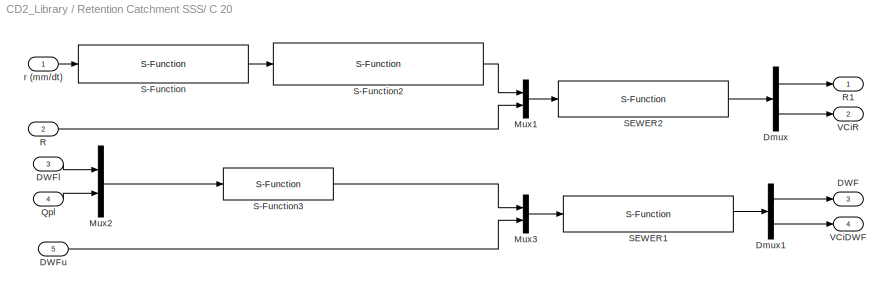
BLOCK [SubSystem] Retention Catchment SSS/ C 20
  FunctionWithSeparateData = off
  MaskCallbackString = ||||||||
  MaskDescription = Simple model of an urban catchment. \nInput ( r ) is a continuous stream of rain data in [mm/DT]. Input (DWF) is the dry weather flow. Input (QP) is parasite water flow entering diluting the DWF. \n\nPollutants concentrations for stormwater Qr are considered constant over time. The block contains an initial loss model for runoff generation, a time/area model for overland flow computation and a mix...<+63ch>
  MaskDisplay = plot(0,0,100,100,\n[17 20 25 30 40 50 55 60 70 75 80]+x,\n[60 80 82 85 88 88 88 85 82 75 60]+y);\n\nplot([20 80]+x,[60 60]+y);\nplot([20 30]+x,[80 60]+y);\nplot([30 40]+x,[75 60]+y);\nplot([45 60]+x,[75 60]+y);\n\ncolor('white');\nplot([20 80]+x,[55 55]+y);\nplot([20 30]+x,[40 55]+y);\nplot([30 40]+x,[45 55]+y);\nplot([45 60]+x,[30 55]+y);\n\ncolor('black');\n\nport_label('input',1,'rl');\nport_la...<+308ch>
  MaskEnableString = on,on,on,on,on,on,on,on,on
  MaskHideContents = off
  MaskIconFrame = on
  MaskIconOpaque = on
  MaskIconRotate = none
  MaskIconUnits = autoscale
  MaskStyleString = edit,edit,edit,edit,edit,edit,edit,edit,edit
  MaskTabNameString = ,,,,,,,,
  MaskToolTipString = on,on,on,on,on,on,on,on,on
  MaskTunableValueString = on,on,on,on,on,on,on,on,on
  MaskType = Catchment SSS - Type B
  MaskValueString = area|rfcoeff|initloss|permloss|N|n_comp|Rain_C|K|X
  MaskVarAliasString = ,,,,,,,,
  MaskVariables = area=@1;rfcoeff=@2;initloss=@3;permloss=@4;N=@5;n_comp=@6;Rain_C=@7;K=@8;X=@9;
  MaskVisibilityString = on,on,on,on,on,on,on,on,on
  MinAlgLoopOccurrences = off
  Ports = [5, 4]
  RTWSystemCode = Auto
BLOCK [Outport] Retention Catchment SSS/ C 20/DWF 
  BusOutputAsStruct = off
  IconDisplay = Port number
  Port = 3
BLOCK [Inport] Retention Catchment SSS/ C 20/DWFl
  IconDisplay = Port number
  Port = 3
BLOCK [Inport] Retention Catchment SSS/ C 20/DWFu
  IconDisplay = Port number
  Port = 5
BLOCK [Demux] Retention Catchment SSS/ C 20/Dmux
  DisplayOption = bar
  Outputs = [n_comp+1,N*(n_comp+1)]
  Ports = [1, 2]
BLOCK [Demux] Retention Catchment SSS/ C 20/Dmux1
  DisplayOption = bar
  Outputs = [n_comp+1,N*(n_comp+1)]
  Ports = [1, 2]
BLOCK [Mux] Retention Catchment SSS/ C 20/Mux1
  DisplayOption = bar
  Inputs = [n_comp+1,n_comp+1]
  Ports = [2, 1]
BLOCK [Mux] Retention Catchment SSS/ C 20/Mux2
  DisplayOption = bar
  Inputs = [n_comp+1,n_comp+1]
  Ports = [2, 1]
BLOCK [Mux] Retention Catchment SSS/ C 20/Mux3
  DisplayOption = bar
  Inputs = [n_comp+1,n_comp+1]
  Ports = [2, 1]
BLOCK [Inport] Retention Catchment SSS/ C 20/Qpl
  IconDisplay = Port number
  Port = 4
BLOCK [Inport] Retention Catchment SSS/ C 20/R
  IconDisplay = Port number
  Port = 2
BLOCK [Outport] Retention Catchment SSS/ C 20/R1
  BusOutputAsStruct = off
  IconDisplay = Port number
BLOCK [S-Function] Retention Catchment SSS/ C 20/S-Function
  FunctionName = CD1_sfun_catchment_lossmodel
  Parameters = initloss,permloss,rfcoeff
  Ports = [1, 1]
BLOCK [S-Function] Retention Catchment SSS/ C 20/S-Function2
  FunctionName = CD1_sfun_catchment_flowmodel_SW
  Parameters = area,n_comp,Rain_C,tstep
  Ports = [1, 1]
BLOCK [S-Function] Retention Catchment SSS/ C 20/S-Function3
  FunctionName = CD1_sfun_mixing_QC
  Parameters = n_comp,tstep
  Ports = [1, 1]
BLOCK [S-Function] Retention Catchment SSS/ C 20/SEWER1
  FunctionName = CD1_sfun_Muskingum_Catchment
  MaskIconFrame = on
  MaskIconOpaque = on
  MaskIconRotate = none
  MaskIconUnits = autoscale
  MaskInitialization = \n
  Parameters = tstep, CX, CY, n_comp,N
  Ports = [1, 1]
BLOCK [S-Function] Retention Catchment SSS/ C 20/SEWER2
  FunctionName = CD1_sfun_Muskingum_Catchment
  MaskIconFrame = on
  MaskIconOpaque = on
  MaskIconRotate = none
  MaskIconUnits = autoscale
  MaskInitialization = \n
  Parameters = tstep, CX, CY, n_comp,N
  Ports = [1, 1]
BLOCK [Outport] Retention Catchment SSS/ C 20/VCiDWF
  BusOutputAsStruct = off
  IconDisplay = Port number
  Port = 4
BLOCK [Outport] Retention Catchment SSS/ C 20/VCiR
  BusOutputAsStruct = off
  IconDisplay = Port number
  Port = 2
BLOCK [Inport] Retention Catchment SSS/ C 20/r (mm//dt)
  IconDisplay = Port number
BLOCK [Outport] Retention Catchment SSS/DWF 
  BusOutputAsStruct = off
  IconDisplay = Port number
  Port = 4
BLOCK [Inport] Retention Catchment SSS/DWFl
  IconDisplay = Port number
  Port = 4
BLOCK [Inport] Retention Catchment SSS/DWFu
  IconDisplay = Port number
  Port = 6
BLOCK [DiscreteStateSpace] Retention Catchment SSS/Discrete State-Space1
  A = zeros(n_comp+1,n_comp+1)
  B = eye(n_comp+1)
  C = eye(n_comp+1)
  D = zeros(n_comp+1,n_comp+1)
  SampleTime = -1
BLOCK [SubSystem] Retention Catchment SSS/Mixer 2
  FunctionWithSeparateData = off
  MaskDescription = Performes mixing of pollutant fluxes Q1 and Q2 in accordance to their hydraulic load.\n\nFunction used:\nCD1_sfun_mixing_QC.m
  MaskDisplay = plot(0,0,100,100);\n\ntext(50,50,'Mix','HorizontalAlignment','center');\n\n\nport_label('input',1,'Q1');\nport_label('input',2,'Q2');\nport_label('output',1,'Qe');\n
  MaskEnableString = on
  MaskHideContents = off
  MaskIconFrame = on
  MaskIconOpaque = on
  MaskIconRotate = none
  MaskIconUnits = autoscale
  MaskPromptString = Number of pollutants [ - ]
  MaskStyleString = edit
  MaskToolTipString = on
  MaskTunableValueString = on
  MaskType = Mixer
  MaskValueString = n_comp
  MaskVariables = n_comp=@1;
  MaskVisibilityString = on
  MinAlgLoopOccurrences = off
  Ports = [2, 1]
  RTWSystemCode = Auto
BLOCK [Inport] Retention Catchment SSS/Mixer 2/ 
  IconDisplay = Port number
  Port = 2
BLOCK [Inport] Retention Catchment SSS/Mixer 2/ 1
  IconDisplay = Port number
BLOCK [Outport] Retention Catchment SSS/Mixer 2/ 3
  BusOutputAsStruct = off
  IconDisplay = Port number
BLOCK [Mux] Retention Catchment SSS/Mixer 2/Mux
  DisplayOption = bar
  Inputs = [n_comp+1,n_comp+1]
  Ports = [2, 1]
BLOCK [S-Function] Retention Catchment SSS/Mixer 2/S-Function
  FunctionName = CD1_sfun_mixing_QC
  Parameters = n_comp,tstep
  Ports = [1, 1]
BLOCK [Mux] Retention Catchment SSS/Mux3
  DisplayOption = bar
  Inputs = [N*(n_comp+1),n_comp+1]
  Ports = [2, 1]
BLOCK [Inport] Retention Catchment SSS/Qpl
  IconDisplay = Port number
  Port = 5
BLOCK [Outport] Retention Catchment SSS/Qr
  BusOutputAsStruct = off
  IconDisplay = Port number
BLOCK [Inport] Retention Catchment SSS/Qri
  IconDisplay = Port number
BLOCK [Inport] Retention Catchment SSS/Ri
  IconDisplay = Port number
  Port = 3
BLOCK [Outport] Retention Catchment SSS/Ro
  BusOutputAsStruct = off
  IconDisplay = Port number
  Port = 2
BLOCK [Outport] Retention Catchment SSS/Ro1
  BusOutputAsStruct = off
  IconDisplay = Port number
  Port = 3
BLOCK [SubSystem] Retention Catchment SSS/Storage
  FunctionWithSeparateData = off
  MaskCallbackString = |||
  MaskEnableString = on,on,on,on
  MaskHideContents = off
  MaskIconFrame = on
  MaskIconOpaque = on
  MaskIconRotate = none
  MaskIconUnits = autoscale
  MaskPromptString = Basin Volume (m3)|Maximum Effluent flow [m3/s]|Number of Pollutants [-]|n-sed (Vect. of Sed. Coefficients)
  MaskStyleString = edit,edit,edit,edit
  MaskTabNameString = ,,,
  MaskToolTipString = on,on,on,on
  MaskTunableValueString = on,on,on,on
  MaskType = CSO Typ B - Combined sewer overflow
  MaskValueString = Vsmax|Qemax|n_comp|n_sed
  MaskVarAliasString = ,,,
  MaskVariables = Vmax=@1;Qemax=@2;n_comp=@3;n_sed=@4;
  MaskVisibilityString = on,on,on,on
  MinAlgLoopOccurrences = off
  Ports = [1, 3]
  RTWSystemCode = Auto
BLOCK [S-Function] Retention Catchment SSS/Storage/CSO FirstFlush1
  FunctionName = CD1_sfun_cso_B
  Parameters = Vmax,Qemax,n_comp,n_sed,tstep
  Ports = [1, 1]
BLOCK [Demux] Retention Catchment SSS/Storage/Demux
  Outputs = [ (n_comp+1) (n_comp+1) (n_comp+1)]
  Ports = [1, 3]
BLOCK [Inport] Retention Catchment SSS/Storage/In
  IconDisplay = Port number
BLOCK [Outport] Retention Catchment SSS/Storage/Qe
  BusOutputAsStruct = off
  IconDisplay = Port number
  Port = 2
BLOCK [Outport] Retention Catchment SSS/Storage/Qw
  BusOutputAsStruct = off
  IconDisplay = Port number
BLOCK [Outport] Retention Catchment SSS/Storage/Vi
  BusOutputAsStruct = off
  IconDisplay = Port number
  Port = 3
BLOCK [Outport] Retention Catchment SSS/VC
  BusOutputAsStruct = off
  IconDisplay = Port number
  Port = 5
BLOCK [Inport] Retention Catchment SSS/r (mm//dt)
  IconDisplay = Port number
  Port = 2
BLOCK [SubSystem] Retention Sewer
  FunctionWithSeparateData = off
  MaskCallbackString = ||||||
  MaskDescription = Function used:\nCD1_sfun_Muskingum_Sewer.m
  MaskDisplay = \nplot(0,0,100,50,\n[0,50,50,0,0]+x,[-10,-10,10,10,-10]+y,\n[10,10]+x,[-10,10]+y,\n[20,20]+x,[-10,10]+y,\n[30,30]+x,[-10,10]+y,\n[40,40]+x,[-10,10]+y,\n[0,0,5,5,10,5,5,0]+kx,\n[5,-5,-5,-13,0,13,5,5]+ky\n);\n\n\ntext(50,7,'SEWER sMS','HorizontalAlignment','center');\n\nport_label('input',1,'Qr');\nport_label('input',2,'Qe');\nport_label('output',1,'Qr');\nport_label('output',2,'Qe');\nport_label('o...<+16ch>
  MaskEnableString = on,on,on,on,on,on,on
  MaskHideContents = off
  MaskIconFrame = on
  MaskIconOpaque = on
  MaskIconRotate = port
  MaskIconUnits = autoscale
  MaskInitialization = %arrow location in icon\nkx=70;\nky=25;\n% picture location\nx=20;y=25;\n\n\n% reading the toplevel systems' name \n% --> Plant file name;\ntls=bdroot(gcb); \n% Obtaining the fixed sampling time\nt_samp_char=get_param(tls, 'FixedStep');\n% Convertion to numeric value\ndt = str2num(t_samp_char); \n\n\n\n\n
  MaskPromptString = K (travel time of a subreach) [s]|X (weighing factor)  [ - ]|Number of pollutants [ - ]|Number of sub-reaches [ - ]|Storage volume [m3]|Maximum effluent flow [m3/s]|n-sed (Vect. of Sed. Coefficients)
  MaskStyleString = edit,edit,edit,edit,edit,edit,edit
  MaskTabNameString = ,,,,,,
  MaskToolTipString = on,on,on,on,on,on,on
  MaskTunableValueString = on,on,on,on,on,on,on
  MaskType = Retention Sewer
  MaskValueString = 300|0.1|CD2_get_substances_count|11|100|0.18|0
  MaskVarAliasString = ,,,,,,
  MaskVariables = K=@1;X=@2;n_comp=@3;N=@4;Vsmax=@5;Qemax=@6;n_sed=@7;
  MaskVisibilityString = on,on,on,on,on,on,on
  MinAlgLoopOccurrences = off
  Ports = [2, 3]
  RTWSystemCode = Auto
BLOCK [DiscreteStateSpace] Retention Sewer/Discrete State-Space1
  A = zeros(n_comp+1,n_comp+1)
  B = eye(n_comp+1)
  C = eye(n_comp+1)
  D = zeros(n_comp+1,n_comp+1)
  SampleTime = -1
BLOCK [SubSystem] Retention Sewer/Mixer 2
  FunctionWithSeparateData = off
  MaskDescription = Performes mixing of pollutant fluxes Q1 and Q2 in accordance to their hydraulic load.\n\nFunction used:\nCD1_sfun_mixing_QC.m
  MaskDisplay = plot(0,0,100,100);\n\ntext(50,50,'Mix','HorizontalAlignment','center');\n\n\nport_label('input',1,'Q1');\nport_label('input',2,'Q2');\nport_label('output',1,'Qe');\n
  MaskEnableString = on
  MaskHideContents = off
  MaskIconFrame = on
  MaskIconOpaque = on
  MaskIconRotate = none
  MaskIconUnits = autoscale
  MaskPromptString = Number of pollutants [ - ]
  MaskStyleString = edit
  MaskToolTipString = on
  MaskTunableValueString = on
  MaskType = Mixer
  MaskValueString = n_comp
  MaskVariables = n_comp=@1;
  MaskVisibilityString = on
  MinAlgLoopOccurrences = off
  Ports = [2, 1]
  RTWSystemCode = Auto
BLOCK [Inport] Retention Sewer/Mixer 2/ 
  IconDisplay = Port number
  Port = 2
BLOCK [Inport] Retention Sewer/Mixer 2/ 1
  IconDisplay = Port number
BLOCK [Outport] Retention Sewer/Mixer 2/ 3
  BusOutputAsStruct = off
  IconDisplay = Port number
BLOCK [Mux] Retention Sewer/Mixer 2/Mux
  DisplayOption = bar
  Inputs = [n_comp+1,n_comp+1]
  Ports = [2, 1]
BLOCK [S-Function] Retention Sewer/Mixer 2/S-Function
  FunctionName = CD1_sfun_mixing_QC
  Parameters = n_comp,tstep
  Ports = [1, 1]
BLOCK [Mux] Retention Sewer/Mux3
  DisplayOption = bar
  Inputs = [N*(n_comp+1),n_comp+1]
  Ports = [2, 1]
BLOCK [Inport] Retention Sewer/Qei
  IconDisplay = Port number
  Port = 2
BLOCK [Outport] Retention Sewer/Qeo
  BusOutputAsStruct = off
  IconDisplay = Port number
  Port = 2
BLOCK [Inport] Retention Sewer/Qri
  IconDisplay = Port number
BLOCK [Outport] Retention Sewer/Qro
  BusOutputAsStruct = off
  IconDisplay = Port number
BLOCK [SubSystem] Retention Sewer/Sewer
  FunctionWithSeparateData = off
  MaskCallbackString = |||
  MaskDescription = Function used:\nCD1_sfun_Muskingum_Sewer.m
  MaskDisplay = \nplot(0,0,100,50,\n[0,50,50,0,0]+x,[-10,-10,10,10,-10]+y,\n[10,10]+x,[-10,10]+y,\n[20,20]+x,[-10,10]+y,\n[30,30]+x,[-10,10]+y,\n[40,40]+x,[-10,10]+y,\n[0,0,5,5,10,5,5,0]+kx,\n[5,-5,-5,-13,0,13,5,5]+ky\n);\n\n\ntext(50,7,'SEWER sM','HorizontalAlignment','center');\n\nport_label('input',1,'Qi');\nport_label('output',1,'Qe');\nport_label('output',2,'VCi');
  MaskEnableString = on,on,on,on
  MaskHideContents = off
  MaskIconFrame = on
  MaskIconOpaque = on
  MaskIconRotate = none
  MaskIconUnits = autoscale
  MaskInitialization = %arrow location in icon\nkx=70;\nky=25;\n% picture location\nx=20;y=25;\n\n\n% reading the toplevel systems' name \n% --> Plant file name;\ntls=bdroot(gcb); \n% Obtaining the fixed sampling time\nt_samp_char=get_param(tls, 'FixedStep');\n% Convertion to numeric value\ndt = str2num(t_samp_char); \n\n%Muskingum parameters\nCA=0.5.*dt-K.*X;\nCB=0.5.*dt+K.*(1-X);\n\n\n
  MaskPromptString = K (travel time of a subreach) [s]|X (weighing factor)  [ - ]|Number of pollutants [ - ]|N (Number of sub-reaches) [ - ]
  MaskStyleString = edit,edit,edit,edit
  MaskTabNameString = ,,,
  MaskToolTipString = on,on,on,on
  MaskTunableValueString = on,on,on,on
  MaskType = Muskingum simplified scheme for Sewer
  MaskValueString = K|X|n_comp|N
  MaskVarAliasString = ,,,
  MaskVariables = K=@1;X=@2;n_comp=@3;N=@4;
  MaskVisibilityString = on,on,on,on
  MinAlgLoopOccurrences = off
  Ports = [1, 2]
  RTWSystemCode = Auto
BLOCK [Demux] Retention Sewer/Sewer/Demux
  Outputs = [n_comp+1,N*(n_comp+1)]
  Ports = [1, 2]
BLOCK [Outport] Retention Sewer/Sewer/Qe
  BusOutputAsStruct = off
  IconDisplay = Port number
BLOCK [Inport] Retention Sewer/Sewer/Qi
  IconDisplay = Port number
BLOCK [S-Function] Retention Sewer/Sewer/S-Function1
  FunctionName = CD1_sfun_Muskingum_Sewer
  Parameters = dt, K, X, CA, CB, n_comp,N
  Ports = [1, 1]
BLOCK [Outport] Retention Sewer/Sewer/V
  BusOutputAsStruct = off
  IconDisplay = Port number
  Port = 2
BLOCK [SubSystem] Retention Sewer/Storage
  FunctionWithSeparateData = off
  MaskCallbackString = |||
  MaskEnableString = on,on,on,on
  MaskHideContents = off
  MaskIconFrame = on
  MaskIconOpaque = on
  MaskIconRotate = none
  MaskIconUnits = autoscale
  MaskPromptString = Basin Volume (m3)|Maximum Effluent flow [m3/s]|Number of Pollutants [-]|n-sed (Vect. of Sed. Coefficients)
  MaskStyleString = edit,edit,edit,edit
  MaskTabNameString = ,,,
  MaskToolTipString = on,on,on,on
  MaskTunableValueString = on,on,on,on
  MaskType = CSO Typ B - Combined sewer overflow
  MaskValueString = Vsmax|Qemax|n_comp|n_sed
  MaskVarAliasString = ,,,
  MaskVariables = Vmax=@1;Qemax=@2;n_comp=@3;n_sed=@4;
  MaskVisibilityString = on,on,on,on
  MinAlgLoopOccurrences = off
  Ports = [1, 3]
  RTWSystemCode = Auto
BLOCK [S-Function] Retention Sewer/Storage/CSO FirstFlush1
  FunctionName = CD1_sfun_cso_B
  Parameters = Vmax,Qemax,n_comp,n_sed,tstep
  Ports = [1, 1]
BLOCK [Demux] Retention Sewer/Storage/Demux
  Outputs = [ (n_comp+1) (n_comp+1) (n_comp+1)]
  Ports = [1, 3]
BLOCK [Inport] Retention Sewer/Storage/In
  IconDisplay = Port number
BLOCK [Outport] Retention Sewer/Storage/Qe
  BusOutputAsStruct = off
  IconDisplay = Port number
  Port = 2
BLOCK [Outport] Retention Sewer/Storage/Qw
  BusOutputAsStruct = off
  IconDisplay = Port number
BLOCK [Outport] Retention Sewer/Storage/Vi
  BusOutputAsStruct = off
  IconDisplay = Port number
  Port = 3
BLOCK [Outport] Retention Sewer/VCi
  BusOutputAsStruct = off
  IconDisplay = Port number
  Port = 3
BLOCK [SubSystem] Set Substance
  FunctionWithSeparateData = off
  MaskCallbackString = |
  MaskDescription = Set concentrations of pollutants and/or Q in flow.\n\nFunction used:\nCD2_sfun_mixing_QC_subs.m
  MaskDisplay = plot(0,0,100,100);\n\ntext(50,50,'Set Q/C','HorizontalAlignment','center');\n\n\nport_label('input',1,'Q/C');\nport_label('input',2,'Qi');\nport_label('output',1,'Qe');\n
  MaskEnableString = on,on
  MaskHideContents = off
  MaskIconFrame = on
  MaskIconOpaque = on
  MaskIconRotate = none
  MaskIconUnits = autoscale
  MaskPromptString = Added substances vector|Number of pollutants [ - ]
  MaskStyleString = edit,edit
  MaskTabNameString = ,
  MaskToolTipString = on,on
  MaskTunableValueString = on,on
  MaskType = Set Q/C
  MaskValueString = 'Temp'|CD2_get_substances_count
  MaskVarAliasString = ,
  MaskVariables = subs_vect=@1;n_comp=@2;
  MaskVisibilityString = on,on
  MinAlgLoopOccurrences = off
  Ports = [2, 1]
  RTWSystemCode = Auto
BLOCK [Inport] Set Substance/ 
  IconDisplay = Port number
  Port = 2
BLOCK [Inport] Set Substance/ 1
  IconDisplay = Port number
BLOCK [Outport] Set Substance/ 3
  BusOutputAsStruct = off
  IconDisplay = Port number
BLOCK [Mux] Set Substance/Mux
  DisplayOption = bar
  Inputs = [CD2_get_substance_count(subs_vect),n_comp+1]
  Ports = [2, 1]
BLOCK [S-Function] Set Substance/S-Function
  FunctionName = CD2_sfun_mixing_QC_subs
  Parameters = subs_vect,n_comp,tstep
  Ports = [1, 1]
BLOCK [SubSystem] SetGlobalVariable
  AttributesFormatString = \"%<Vname>\"
  FunctionWithSeparateData = off
  MaskCallbackString = |
  MaskDescription = This block is designed to set a global parameter(variable) at the workspace, prior the simulation start.\n\nSetting is done after saving the current mdl-file. \nBlockProperties -> Callbacks -> PostSaveFcn\n\n\n
  MaskDisplay = plot(0,0,100,100);\n\npatch(\n[0,100,100,0,0],[50,50,100,100,50],[0 0.4 0.6]);\npatch(\n[0,100,100,0,0],[0,0,50,50,0],[0 0.6 0.4]);\n\ntext(50,60,'Set','HorizontalAlignment','center');\ntext(50,30,'GlobalVar','HorizontalAlignment','center');\n
  MaskEnableString = on,on
  MaskHideContents = off
  MaskIconFrame = on
  MaskIconOpaque = on
  MaskIconRotate = none
  MaskIconUnits = autoscale
  MaskInitialization = \n\n\n\n
  MaskPromptString = Variables names|Variables values
  MaskStyleString = edit,edit
  MaskTabNameString = ,
  MaskToolTipString = on,on
  MaskTunableValueString = on,on
  MaskType = Set-Global-Param
  MaskValueString = Crain|[0 0 0 0 0.418 48/1000 81 1]
  MaskVarAliasString = ,
  MaskVariables = Vname=@1;Vvalue=@2;
  MaskVisibilityString = on,on
  MinAlgLoopOccurrences = off
  Ports = []
  PostSaveFcn = cb_name=get_param(gcb,'Vname');            \ncb_value=get_param(gcb,'Vvalue');          \nassignin('base',cb_name,str2num(cb_value));\nclear('cb_value');                         \nclear('cb_name');
  RTWSystemCode = Auto
BLOCK [SubSystem] Sewer
  FunctionWithSeparateData = off
  MaskCallbackString = |||
  MaskDescription = Function used:\nCD1_sfun_Muskingum_Sewer.m
  MaskDisplay = \nplot(0,0,100,50,\n[0,50,50,0,0]+x,[-10,-10,10,10,-10]+y,\n[10,10]+x,[-10,10]+y,\n[20,20]+x,[-10,10]+y,\n[30,30]+x,[-10,10]+y,\n[40,40]+x,[-10,10]+y,\n[0,0,5,5,10,5,5,0]+kx,\n[5,-5,-5,-13,0,13,5,5]+ky\n);\n\n\ntext(50,7,'SEWER sM','HorizontalAlignment','center');\n\nport_label('input',1,'Qi');\nport_label('output',1,'Qe');\nport_label('output',2,'VCi');
  MaskEnableString = on,on,on,on
  MaskHideContents = off
  MaskIconFrame = on
  MaskIconOpaque = on
  MaskIconRotate = none
  MaskIconUnits = autoscale
  MaskInitialization = %arrow location in icon\nkx=70;\nky=25;\n% picture location\nx=20;y=25;\n\n\n% reading the toplevel systems' name \n% --> Plant file name;\ntls=bdroot(gcb); \n% Obtaining the fixed sampling time\nt_samp_char=get_param(tls, 'FixedStep');\n% Convertion to numeric value\ndt = str2num(t_samp_char); \n\n%Muskingum parameters\nCA=0.5.*dt-K.*X;\nCB=0.5.*dt+K.*(1-X);\n\n\n
  MaskPromptString = K (travel time of a subreach) [s]|X (weighing factor)  [ - ]|Number of pollutants [ - ]|N (Number of sub-reaches) [ - ]
  MaskStyleString = edit,edit,edit,edit
  MaskTabNameString = ,,,
  MaskToolTipString = on,on,on,on
  MaskTunableValueString = on,on,on,on
  MaskType = Sewer
  MaskValueString = 300|0.1|CD2_get_substances_count|11
  MaskVarAliasString = ,,,
  MaskVariables = K=@1;X=@2;n_comp=@3;N=@4;
  MaskVisibilityString = on,on,on,on
  MinAlgLoopOccurrences = off
  Ports = [1, 2]
  RTWSystemCode = Auto
BLOCK [Demux] Sewer/Demux
  Outputs = [n_comp+1,N*(n_comp+1)]
  Ports = [1, 2]
BLOCK [Outport] Sewer/Qe
  BusOutputAsStruct = off
  IconDisplay = Port number
BLOCK [Inport] Sewer/Qi
  IconDisplay = Port number
BLOCK [S-Function] Sewer/S-Function1
  FunctionName = CD1_sfun_Muskingum_Sewer
  Parameters = dt, K, X, CA, CB, n_comp,N
  Ports = [1, 1]
BLOCK [Outport] Sewer/V
  BusOutputAsStruct = off
  IconDisplay = Port number
  Port = 2
BLOCK [SubSystem] Splitter 
  FunctionWithSeparateData = off
  MaskCallbackString = ||
  MaskDescription = Splitter parameter.
  MaskDisplay = plot(0,0,100,100);\n\nplot([30,50],[50,50]);\nplot([50,70],[50,70]);\nplot([50,70],[50,30]);\n\ntext(50,10,'SPLITTER','HorizontalAlignment','center');\nport_label('input',1,'Qi');\nport_label('output',1,'Q1');\nport_label('output',2,'Q2');\n
  MaskEnableString = on,on,on
  MaskHelp = Splits stream in 2 streams. Split by percent or by value.
  MaskHideContents = off
  MaskIconFrame = on
  MaskIconOpaque = on
  MaskIconRotate = none
  MaskIconUnits = autoscale
  MaskPromptString = Number of components|Fraction / Amount directed to Q1|Splitting mode
  MaskStyleString = edit,edit,popup(Fraction [0-1]|Percent [0-100]|m³/s)
  MaskTabNameString = ,,
  MaskToolTipString = on,on,on
  MaskTunableValueString = on,on,on
  MaskType = Splitter
  MaskValueString = CD2_get_substances_count|40|Percent [0-100]
  MaskVarAliasString = ,,
  MaskVariables = n_comp=@1;values=@2;mode=@3;
  MaskVisibilityString = on,on,on
  MinAlgLoopOccurrences = off
  Ports = [1, 2]
  RTWSystemCode = Auto
BLOCK [Inport] Splitter / 1
  IconDisplay = Port number
BLOCK [Outport] Splitter / 2
  BusOutputAsStruct = off
  IconDisplay = Port number
  Port = 2
BLOCK [Outport] Splitter / 3
  BusOutputAsStruct = off
  IconDisplay = Port number
BLOCK [Demux] Splitter /Demux
  Outputs = 2
  Ports = [1, 2]
BLOCK [S-Function] Splitter /S-Function
  FunctionName = CD1_sfun_splitter
  Parameters = n_comp,values,mode,tstep
  Ports = [1, 1]
BLOCK [SubSystem] Substance Filter
  FunctionWithSeparateData = off
  MaskCallbackString = |
  MaskDescription = Filters input for a set of element(Flow and concnetrations).\n\nFunction used:\nCD2_sfun_out_subs.m
  MaskDisplay = plot(0,0,100,100);\n\ntext(50,50,'Filter','HorizontalAlignment','center');\n\n\nport_label('input',1,'Qi');\nport_label('output',1,'S');\n
  MaskEnableString = on,on
  MaskHideContents = off
  MaskIconFrame = on
  MaskIconOpaque = on
  MaskIconRotate = none
  MaskIconUnits = autoscale
  MaskPromptString = Added substances vector|Number of pollutants [ - ]
  MaskStyleString = edit,edit
  MaskTabNameString = ,
  MaskToolTipString = on,on
  MaskTunableValueString = on,on
  MaskType = Filter
  MaskValueString = 'CO2 CO2'|CD2_get_substances_count
  MaskVarAliasString = ,
  MaskVariables = subs_vect=@1;n_comp=@2;
  MaskVisibilityString = on,on
  MinAlgLoopOccurrences = off
  Ports = [1, 1]
  RTWSystemCode = Auto
BLOCK [Inport] Substance Filter/ 1
  IconDisplay = Port number
BLOCK [Outport] Substance Filter/ 3
  BusOutputAsStruct = off
  IconDisplay = Port number
BLOCK [S-Function] Substance Filter/S-Function
  FunctionName = CD2_sfun_out_subs
  Parameters = subs_vect,n_comp,tstep
  Ports = [1, 1]
BLOCK [S-Function] Sum QC (t)1
  FunctionName = CD1_sfun_sum_QC
  MaskDescription = This block returns the total hydraulic load V [m3] and the pollutant load M [g] during the simulation run.\n\nFunction used:\nCD1_sfun_sum_QC_t.m
  MaskDisplay = plot(0,0,100,100);\ntext(50,50,'Sum QC(t)','HorizontalAlignment','center');
  MaskEnableString = on
  MaskIconFrame = on
  MaskIconOpaque = on
  MaskIconRotate = none
  MaskIconUnits = autoscale
  MaskInitialization = \n\n% reading the toplevel systems' name \n% --> Plant file name;\ntls=bdroot(gcb); \n% Obtaining the fixed sampling time\nt_samp_char=get_param(tls, 'FixedStep');\n% Convertion to numeric value\ntstep = str2num(t_samp_char);
  MaskPromptString = Number of pollutants [ - ]
  MaskStyleString = edit
  MaskToolTipString = on
  MaskTunableValueString = on
  MaskType = Cumulation of Masses
  MaskValueString = 1
  MaskVariables = n_p=@1;
  MaskVisibilityString = on
  Parameters = n_p, tstep
  Ports = [1, 1]
BLOCK [SubSystem] Switcher
  FunctionWithSeparateData = off
  MaskCallbackString = |
  MaskDescription = Switching of flows Q1 and Q2 in accordance the mask parameter switch.\nSwitch=1 => Q1\nSwitch=0 => Q2\n\nFunction used:\nCD1_sfun_switcher.m
  MaskDisplay = plot(0,0,100,100);\n\ntext(50,50,'SWITCH','HorizontalAlignment','center');\n\n\nport_label('input',1,'Q1');\nport_label('input',2,'Q2');\nport_label('output',1,'Qe');\n
  MaskEnableString = on,on
  MaskHideContents = off
  MaskIconFrame = on
  MaskIconOpaque = on
  MaskIconRotate = none
  MaskIconUnits = autoscale
  MaskPromptString = Number of pollutants [ - ]|Switch
  MaskStyleString = edit,edit
  MaskTabNameString = ,
  MaskToolTipString = on,on
  MaskTunableValueString = on,on
  MaskType = Switcher
  MaskValueString = CD2_get_substances_count|0
  MaskVarAliasString = ,
  MaskVariables = n_comp=@1;wechsler=@2;
  MaskVisibilityString = on,on
  MinAlgLoopOccurrences = off
  Ports = [2, 1]
  RTWSystemCode = Auto
BLOCK [Inport] Switcher/ 
  IconDisplay = Port number
  Port = 2
BLOCK [Inport] Switcher/ 1
  IconDisplay = Port number
BLOCK [Outport] Switcher/ 3
  BusOutputAsStruct = off
  IconDisplay = Port number
BLOCK [Mux] Switcher/Mux
  DisplayOption = bar
  Inputs = [n_comp+1,n_comp+1]
  Ports = [2, 1]
BLOCK [S-Function] Switcher/S-Function
  FunctionName = CD1_sfun_switcher
  Parameters = wechsler,n_comp,tstep
  Ports = [1, 1]
BLOCK [Terminator] Terminator
BLOCK [ToFile] To File
  Filename = output.mat
BLOCK [ToWorkspace] To Workspace1
  MaxDataPoints = inf
  SampleTime = -1
  SaveFormat = Array
  VariableName = yout
BLOCK [SubSystem] WWTP
  FunctionWithSeparateData = off
  MaskCallbackString = ||
  MaskDescription = Simple WWTP model. Inflow given is treated according to userdefined maximum concnetration limits and treatment efficiencies. \n\nFunction used:\nCD1_sfun_WWTP.m
  MaskDisplay = \nplot(0,0,100,100);\nplot(\n[20,50,50,20,20],[30,30,55,55,30],\n[60,80,70,60],[60,60,20,60],\n[50, 65],[40,40]\n);\n\n\ntext(50,80,'WWTP','HorizontalAlignment','center');\ntext(50,20,'--','HorizontalAlignment','center');\n\n\nport_label('input',1,'Qi');\nport_label('output',1,'Qw');
  MaskEnableString = on,on,on
  MaskHideContents = off
  MaskIconFrame = on
  MaskIconOpaque = on
  MaskIconRotate = none
  MaskIconUnits = autoscale
  MaskInitialization = % reading the toplevel systems' name \n% --> Plant file name;\ntls=bdroot(gcb); \n% Obtaining the fixed sampling time\nt_samp_char=get_param(tls, 'FixedStep');\n% Convertion to numeric value\ntstep = str2num(t_samp_char); \n\nRE=REmin;\nfor i=1:n_comp\n	if REmin(i) < 0 \n		RE(i)=0;\n		fprintf('WARNING, Block WWTP:  Removal efficientc of component %u has set to 0, User input REmin <0 \\n',i);\n	els...<+194ch>
  MaskPromptString = Removal Efficiency REmin [-]|Maximum effluent concnetration Cemax [g/m³]|Number of Components ()
  MaskStyleString = edit,edit,edit
  MaskTabNameString = ,,
  MaskToolTipString = on,on,on
  MaskTunableValueString = on,on,on
  MaskType = WWTP
  MaskValueString = [0.85 0.8 0.75]|[5 .2 .5]|CD2_get_substances_count
  MaskVarAliasString = ,,
  MaskVariables = REmin=@1;Cemax=@2;n_comp=@3;
  MaskVisibilityString = on,on,on
  MinAlgLoopOccurrences = off
  Ports = [1, 1]
  RTWSystemCode = Auto
BLOCK [Inport] WWTP/In
  IconDisplay = Port number
BLOCK [Outport] WWTP/Qw
  BusOutputAsStruct = off
  IconDisplay = Port number
BLOCK [S-Function] WWTP/WWTP v01 - 1
  FunctionName = CD1_sfun_WWTP
  Parameters = n_comp,RE,Cemax,tstep
  Ports = [1, 1]
BLOCK [Selector] x,V1
  Elements = (1:14)
  InputPortWidth = 3*14
  Ports = [1, 1]
ANNOTATION (root): CATCHMENT\nSEWER
ANNOTATION (root): MANUALS
ANNOTATION (root): RIVER
ANNOTATION (root): SOURCE
ANNOTATION (root): TOOLS
ANNOTATION (root): WASTE WATER \nTREATMENT
LINE  1/ 1:1 ->  1/Rainsplitter:1
LINE  1/ 4:1 ->  1/DWF splitter:1
LINE  1/DWF - Pipe:1 ->  1/ 2:1
LINE  1/DWF splitter:1 ->  1/Demux1:1
LINE  1/Demux1:1 ->  1/Mux:2
LINE  1/Demux1:2 ->  1/Mux1:2
LINE  1/Demux:1 ->  1/Mux1:1
LINE  1/Demux:2 ->  1/Mux:1
LINE  1/Mux1:1 ->  1/DWF - Pipe:1
LINE  1/Mux:1 ->  1/Stormwater Pipe:1
LINE  1/Rainsplitter:1 ->  1/Demux:1
LINE  1/Stormwater Pipe:1 ->  1/ 3:1
LINE  Dyn. Splitter/ 1:1 ->  Dyn. Splitter/Mux:1
LINE  Dyn. Splitter/ 4:1 ->  Dyn. Splitter/Mux:2
LINE  Dyn. Splitter/Demux:1 ->  Dyn. Splitter/ 3:1
LINE  Dyn. Splitter/Demux:2 ->  Dyn. Splitter/ 2:1
LINE  Dyn. Splitter/Mux:1 ->  Dyn. Splitter/S-Function:1
LINE  Dyn. Splitter/S-Function:1 ->  Dyn. Splitter/Demux:1
LINE  Hydropower 01/Mux:1 ->  Hydropower 01/S-Function2:1
LINE  Hydropower 01/S-Function2:1 ->  Hydropower 01/Runoff vector Q,C:1
LINE  Hydropower 01/q0 [m³//s] ... baseflow:1 ->  Hydropower 01/Mux:2
LINE  Hydropower 01/qa [m³//s] ... additional flow:1 ->  Hydropower 01/Mux:1
LINE  Mixer QD/ 1:1 ->  Mixer QD/Mux:1
LINE  Mixer QD/ :1 ->  Mixer QD/Mux:2
LINE  Mixer QD/Demux:1 ->  Mixer QD/ 3:1
LINE  Mixer QD/Demux:2 ->  Mixer QD/ 2:1
LINE  Mixer QD/Mux:1 ->  Mixer QD/S-Function:1
LINE  Mixer QD/S-Function:1 ->  Mixer QD/Demux:1
LINE ASM WWTP/ 1:1 -> ASM WWTP/S-Function:1
LINE ASM WWTP/Demux:1 -> ASM WWTP/ 3:1
LINE ASM WWTP/Demux:2 -> ASM WWTP/ 2:1
LINE ASM WWTP/S-Function:1 -> ASM WWTP/Demux:1
LINE CSO_QC_v01/CSO FirstFlush1:1 -> CSO_QC_v01/Demux:1
LINE CSO_QC_v01/Demux:1 -> CSO_QC_v01/Qw:1
LINE CSO_QC_v01/Demux:2 -> CSO_QC_v01/Qe:1
LINE CSO_QC_v01/Demux:3 -> CSO_QC_v01/Vi:1
LINE CSO_QC_v01/In:1 -> CSO_QC_v01/CSO FirstFlush1:1
LINE CSO_QC_v02/CSO FirstFlush1:1 -> CSO_QC_v02/Demux:1
LINE CSO_QC_v02/Demux:1 -> CSO_QC_v02/Qw:1
LINE CSO_QC_v02/Demux:2 -> CSO_QC_v02/Qe:1
LINE CSO_QC_v02/Demux:3 -> CSO_QC_v02/Vi:1
LINE CSO_QC_v02/In:1 -> CSO_QC_v02/CSO FirstFlush1:1
LINE Catchment CSS/DWFl:1 -> Catchment CSS/Mux2:1
LINE Catchment CSS/Demux:1 -> Catchment CSS/Qe1:1
LINE Catchment CSS/Demux:2 -> Catchment CSS/VCi:1
LINE Catchment CSS/Mux1:1 -> Catchment CSS/S-Function3:1
LINE Catchment CSS/Mux2:1 -> Catchment CSS/S-Function2:1
LINE Catchment CSS/Mux3:1 -> Catchment CSS/SEWER2:1
LINE Catchment CSS/Qe:1 -> Catchment CSS/Mux3:2
LINE Catchment CSS/Qpl:1 -> Catchment CSS/Mux2:2
LINE Catchment CSS/S-Function1:1 -> Catchment CSS/Mux1:1
LINE Catchment CSS/S-Function2:1 -> Catchment CSS/Mux1:2
LINE Catchment CSS/S-Function3:1 -> Catchment CSS/Mux3:1
LINE Catchment CSS/S-Function:1 -> Catchment CSS/S-Function1:1
LINE Catchment CSS/SEWER2:1 -> Catchment CSS/Demux:1
LINE Catchment CSS/r (mm//dt):1 -> Catchment CSS/S-Function:1
LINE Catchment SSS/DWFl:1 -> Catchment SSS/Mux2:1
LINE Catchment SSS/DWFu:1 -> Catchment SSS/Mux3:2
LINE Catchment SSS/Dmux1:1 -> Catchment SSS/DWF :1
LINE Catchment SSS/Dmux1:2 -> Catchment SSS/VCiDWF:1
LINE Catchment SSS/Dmux:1 -> Catchment SSS/R1:1
LINE Catchment SSS/Dmux:2 -> Catchment SSS/VCiR:1
LINE Catchment SSS/Mux1:1 -> Catchment SSS/SEWER2:1
LINE Catchment SSS/Mux2:1 -> Catchment SSS/S-Function3:1
LINE Catchment SSS/Mux3:1 -> Catchment SSS/SEWER1:1
LINE Catchment SSS/Qpl:1 -> Catchment SSS/Mux2:2
LINE Catchment SSS/R:1 -> Catchment SSS/Mux1:2
LINE Catchment SSS/S-Function2:1 -> Catchment SSS/Mux1:1
LINE Catchment SSS/S-Function3:1 -> Catchment SSS/Mux3:1
LINE Catchment SSS/S-Function:1 -> Catchment SSS/S-Function2:1
LINE Catchment SSS/SEWER1:1 -> Catchment SSS/Dmux1:1
LINE Catchment SSS/SEWER2:1 -> Catchment SSS/Dmux:1
LINE Catchment SSS/r (mm//dt):1 -> Catchment SSS/S-Function:1
LINE Flowread/flowread:1 -> Flowread/out_1:1
LINE Mix 3/ 1:1 -> Mix 3/Mix 9:1
LINE Mix 3/ 2:1 -> Mix 3/Mix 8:2
LINE Mix 3/ :1 -> Mix 3/Mix 9:2
LINE Mix 3/Mix 8/ 1:1 -> Mix 3/Mix 8/Mux:1
LINE Mix 3/Mix 8/ :1 -> Mix 3/Mix 8/Mux:2
LINE Mix 3/Mix 8/Mux:1 -> Mix 3/Mix 8/S-Function:1
LINE Mix 3/Mix 8/S-Function:1 -> Mix 3/Mix 8/ 3:1
LINE Mix 3/Mix 8:1 -> Mix 3/ 3:1
LINE Mix 3/Mix 9/ 1:1 -> Mix 3/Mix 9/Mux:1
LINE Mix 3/Mix 9/ :1 -> Mix 3/Mix 9/Mux:2
LINE Mix 3/Mix 9/Mux:1 -> Mix 3/Mix 9/S-Function:1
LINE Mix 3/Mix 9/S-Function:1 -> Mix 3/Mix 9/ 3:1
LINE Mix 3/Mix 9:1 -> Mix 3/Mix 8:1
LINE Mix2/ 1:1 -> Mix2/Mux:1
LINE Mix2/ :1 -> Mix2/Mux:2
LINE Mix2/Mux:1 -> Mix2/S-Function:1
LINE Mix2/S-Function:1 -> Mix2/ 3:1
LINE Musk oM-Q - 01/Demux:1 -> Musk oM-Q - 01/Q:1
LINE Musk oM-Q - 01/Demux:2 -> Musk oM-Q - 01/V:1
LINE Musk oM-Q - 01/Qi:1 -> Musk oM-Q - 01/S-Function1:1
LINE Musk oM-Q - 01/S-Function1:1 -> Musk oM-Q - 01/Demux:1
LINE Musk oS-Q - 01/Demux:1 -> Musk oS-Q - 01/Qe:1
LINE Musk oS-Q - 01/Demux:2 -> Musk oS-Q - 01/V:1
LINE Musk oS-Q - 01/Qi:1 -> Musk oS-Q - 01/S-Function1:1
LINE Musk oS-Q - 01/S-Function1:1 -> Musk oS-Q - 01/Demux:1
LINE Musk sM-QC - 01/Demux:1 -> Musk sM-QC - 01/Qe:1
LINE Musk sM-QC - 01/Demux:2 -> Musk sM-QC - 01/V:1
LINE Musk sM-QC - 01/Qi:1 -> Musk sM-QC - 01/S-Function1:1
LINE Musk sM-QC - 01/S-Function1:1 -> Musk sM-QC - 01/Demux:1
LINE Musk sS-QC - 01/Demux:1 -> Musk sS-QC - 01/Qe:1
LINE Musk sS-QC - 01/Demux:2 -> Musk sS-QC - 01/V:1
LINE Musk sS-QC - 01/Qi:1 -> Musk sS-QC - 01/S-Function1:1
LINE Musk sS-QC - 01/S-Function1:1 -> Musk sS-QC - 01/Demux:1
LINE PE/Constant:1 -> PE/Product:2
LINE PE/From DWF:1 -> PE/Product:1
LINE PE/Product:1 -> PE/DWF Q,C:1
LINE Pumping Station/CSO FirstFlush1:1 -> Pumping Station/Demux:1
LINE Pumping Station/Demux:1 -> Pumping Station/Qw:1
LINE Pumping Station/Demux:2 -> Pumping Station/Qp:1
LINE Pumping Station/Demux:3 -> Pumping Station/Vi:1
LINE Pumping Station/In:1 -> Pumping Station/CSO FirstFlush1:1
LINE QCMGENERATOR/S-Function:1 -> QCMGENERATOR/DWF:1
LINE RAINGENERATOR/S-Function:1 -> RAINGENERATOR/Output Signal: mm//timestep:1
LINE Rainread/rainread:1 -> Rainread/out_1:1
LINE Retention Catchment CSS/ Gebiet 11/DWFl:1 -> Retention Catchment CSS/ Gebiet 11/Mux2:1
LINE Retention Catchment CSS/ Gebiet 11/Demux:1 -> Retention Catchment CSS/ Gebiet 11/Qe1:1
LINE Retention Catchment CSS/ Gebiet 11/Demux:2 -> Retention Catchment CSS/ Gebiet 11/VCi:1
LINE Retention Catchment CSS/ Gebiet 11/Mux1:1 -> Retention Catchment CSS/ Gebiet 11/S-Function3:1
LINE Retention Catchment CSS/ Gebiet 11/Mux2:1 -> Retention Catchment CSS/ Gebiet 11/S-Function2:1
LINE Retention Catchment CSS/ Gebiet 11/Mux3:1 -> Retention Catchment CSS/ Gebiet 11/SEWER2:1
LINE Retention Catchment CSS/ Gebiet 11/Qe:1 -> Retention Catchment CSS/ Gebiet 11/Mux3:2
LINE Retention Catchment CSS/ Gebiet 11/Qpl:1 -> Retention Catchment CSS/ Gebiet 11/Mux2:2
LINE Retention Catchment CSS/ Gebiet 11/S-Function1:1 -> Retention Catchment CSS/ Gebiet 11/Mux1:1
LINE Retention Catchment CSS/ Gebiet 11/S-Function2:1 -> Retention Catchment CSS/ Gebiet 11/Mux1:2
LINE Retention Catchment CSS/ Gebiet 11/S-Function3:1 -> Retention Catchment CSS/ Gebiet 11/Mux3:1
LINE Retention Catchment CSS/ Gebiet 11/S-Function:1 -> Retention Catchment CSS/ Gebiet 11/S-Function1:1
LINE Retention Catchment CSS/ Gebiet 11/SEWER2:1 -> Retention Catchment CSS/ Gebiet 11/Demux:1
LINE Retention Catchment CSS/ Gebiet 11/r (mm//dt):1 -> Retention Catchment CSS/ Gebiet 11/S-Function:1
LINE Retention Catchment CSS/ Gebiet 11:1 -> Retention Catchment CSS/Storage:1
LINE Retention Catchment CSS/ Gebiet 11:2 -> Retention Catchment CSS/Mux3:1
LINE Retention Catchment CSS/DWFl:1 -> Retention Catchment CSS/Mixer 2:2
LINE Retention Catchment CSS/Discrete State-Space1:1 -> Retention Catchment CSS/Qro:1
LINE Retention Catchment CSS/Mixer 2/ 1:1 -> Retention Catchment CSS/Mixer 2/Mux:1
LINE Retention Catchment CSS/Mixer 2/ :1 -> Retention Catchment CSS/Mixer 2/Mux:2
LINE Retention Catchment CSS/Mixer 2/Mux:1 -> Retention Catchment CSS/Mixer 2/S-Function:1
LINE Retention Catchment CSS/Mixer 2/S-Function:1 -> Retention Catchment CSS/Mixer 2/ 3:1
LINE Retention Catchment CSS/Mixer 2:1 -> Retention Catchment CSS/ Gebiet 11:2
LINE Retention Catchment CSS/Mux3:1 -> Retention Catchment CSS/VC:1
LINE Retention Catchment CSS/Qe:1 -> Retention Catchment CSS/ Gebiet 11:4
LINE Retention Catchment CSS/Qpl:1 -> Retention Catchment CSS/ Gebiet 11:3
LINE Retention Catchment CSS/Qri:1 -> Retention Catchment CSS/Mixer 2:1
LINE Retention Catchment CSS/Storage/Catchment Storage:1 -> Retention Catchment CSS/Storage/Demux:1
LINE Retention Catchment CSS/Storage/Demux:1 -> Retention Catchment CSS/Storage/Qw:1
LINE Retention Catchment CSS/Storage/Demux:2 -> Retention Catchment CSS/Storage/Qe:1
LINE Retention Catchment CSS/Storage/Demux:3 -> Retention Catchment CSS/Storage/Vi:1
LINE Retention Catchment CSS/Storage/In:1 -> Retention Catchment CSS/Storage/Catchment Storage:1
LINE Retention Catchment CSS/Storage:1 -> Retention Catchment CSS/Discrete State-Space1:1
LINE Retention Catchment CSS/Storage:2 -> Retention Catchment CSS/Qeo:1
LINE Retention Catchment CSS/Storage:3 -> Retention Catchment CSS/Mux3:2
LINE Retention Catchment CSS/r (mm//dt):1 -> Retention Catchment CSS/ Gebiet 11:1
LINE Retention Catchment CSS:1 -> Retention Catchment CSS:1
LINE Retention Catchment SSS/ C 20/DWFl:1 -> Retention Catchment SSS/ C 20/Mux2:1
LINE Retention Catchment SSS/ C 20/DWFu:1 -> Retention Catchment SSS/ C 20/Mux3:2
LINE Retention Catchment SSS/ C 20/Dmux1:1 -> Retention Catchment SSS/ C 20/DWF :1
LINE Retention Catchment SSS/ C 20/Dmux1:2 -> Retention Catchment SSS/ C 20/VCiDWF:1
LINE Retention Catchment SSS/ C 20/Dmux:1 -> Retention Catchment SSS/ C 20/R1:1
LINE Retention Catchment SSS/ C 20/Dmux:2 -> Retention Catchment SSS/ C 20/VCiR:1
LINE Retention Catchment SSS/ C 20/Mux1:1 -> Retention Catchment SSS/ C 20/SEWER2:1
LINE Retention Catchment SSS/ C 20/Mux2:1 -> Retention Catchment SSS/ C 20/S-Function3:1
LINE Retention Catchment SSS/ C 20/Mux3:1 -> Retention Catchment SSS/ C 20/SEWER1:1
LINE Retention Catchment SSS/ C 20/Qpl:1 -> Retention Catchment SSS/ C 20/Mux2:2
LINE Retention Catchment SSS/ C 20/R:1 -> Retention Catchment SSS/ C 20/Mux1:2
LINE Retention Catchment SSS/ C 20/S-Function2:1 -> Retention Catchment SSS/ C 20/Mux1:1
LINE Retention Catchment SSS/ C 20/S-Function3:1 -> Retention Catchment SSS/ C 20/Mux3:1
LINE Retention Catchment SSS/ C 20/S-Function:1 -> Retention Catchment SSS/ C 20/S-Function2:1
LINE Retention Catchment SSS/ C 20/SEWER1:1 -> Retention Catchment SSS/ C 20/Dmux1:1
LINE Retention Catchment SSS/ C 20/SEWER2:1 -> Retention Catchment SSS/ C 20/Dmux:1
LINE Retention Catchment SSS/ C 20/r (mm//dt):1 -> Retention Catchment SSS/ C 20/S-Function:1
LINE Retention Catchment SSS/ C 20:1 -> Retention Catchment SSS/Ro:1
LINE Retention Catchment SSS/ C 20:2 -> Retention Catchment SSS/Ro1:1
LINE Retention Catchment SSS/ C 20:3 -> Retention Catchment SSS/Storage:1
LINE Retention Catchment SSS/ C 20:4 -> Retention Catchment SSS/Mux3:1
LINE Retention Catchment SSS/DWFl:1 -> Retention Catchment SSS/Mixer 2:2
LINE Retention Catchment SSS/DWFu:1 -> Retention Catchment SSS/ C 20:5
LINE Retention Catchment SSS/Discrete State-Space1:1 -> Retention Catchment SSS/Qr:1
LINE Retention Catchment SSS/Mixer 2/ 1:1 -> Retention Catchment SSS/Mixer 2/Mux:1
LINE Retention Catchment SSS/Mixer 2/ :1 -> Retention Catchment SSS/Mixer 2/Mux:2
LINE Retention Catchment SSS/Mixer 2/Mux:1 -> Retention Catchment SSS/Mixer 2/S-Function:1
LINE Retention Catchment SSS/Mixer 2/S-Function:1 -> Retention Catchment SSS/Mixer 2/ 3:1
LINE Retention Catchment SSS/Mixer 2:1 -> Retention Catchment SSS/ C 20:3
LINE Retention Catchment SSS/Mux3:1 -> Retention Catchment SSS/VC:1
LINE Retention Catchment SSS/Qpl:1 -> Retention Catchment SSS/ C 20:4
LINE Retention Catchment SSS/Qri:1 -> Retention Catchment SSS/Mixer 2:1
LINE Retention Catchment SSS/Ri:1 -> Retention Catchment SSS/ C 20:2
LINE Retention Catchment SSS/Storage/CSO FirstFlush1:1 -> Retention Catchment SSS/Storage/Demux:1
LINE Retention Catchment SSS/Storage/Demux:1 -> Retention Catchment SSS/Storage/Qw:1
LINE Retention Catchment SSS/Storage/Demux:2 -> Retention Catchment SSS/Storage/Qe:1
LINE Retention Catchment SSS/Storage/Demux:3 -> Retention Catchment SSS/Storage/Vi:1
LINE Retention Catchment SSS/Storage/In:1 -> Retention Catchment SSS/Storage/CSO FirstFlush1:1
LINE Retention Catchment SSS/Storage:1 -> Retention Catchment SSS/Discrete State-Space1:1
LINE Retention Catchment SSS/Storage:2 -> Retention Catchment SSS/DWF :1
LINE Retention Catchment SSS/Storage:3 -> Retention Catchment SSS/Mux3:2
LINE Retention Catchment SSS/r (mm//dt):1 -> Retention Catchment SSS/ C 20:1
LINE Retention Catchment SSS:1 -> Retention Catchment SSS:1
LINE Retention Sewer/Discrete State-Space1:1 -> Retention Sewer/Qro:1
LINE Retention Sewer/Mixer 2/ 1:1 -> Retention Sewer/Mixer 2/Mux:1
LINE Retention Sewer/Mixer 2/ :1 -> Retention Sewer/Mixer 2/Mux:2
LINE Retention Sewer/Mixer 2/Mux:1 -> Retention Sewer/Mixer 2/S-Function:1
LINE Retention Sewer/Mixer 2/S-Function:1 -> Retention Sewer/Mixer 2/ 3:1
LINE Retention Sewer/Mixer 2:1 -> Retention Sewer/Sewer:1
LINE Retention Sewer/Mux3:1 -> Retention Sewer/VCi:1
LINE Retention Sewer/Qei:1 -> Retention Sewer/Mixer 2:2
LINE Retention Sewer/Qri:1 -> Retention Sewer/Mixer 2:1
LINE Retention Sewer/Sewer/Demux:1 -> Retention Sewer/Sewer/Qe:1
LINE Retention Sewer/Sewer/Demux:2 -> Retention Sewer/Sewer/V:1
LINE Retention Sewer/Sewer/Qi:1 -> Retention Sewer/Sewer/S-Function1:1
LINE Retention Sewer/Sewer/S-Function1:1 -> Retention Sewer/Sewer/Demux:1
LINE Retention Sewer/Sewer:1 -> Retention Sewer/Storage:1
LINE Retention Sewer/Sewer:2 -> Retention Sewer/Mux3:1
LINE Retention Sewer/Storage/CSO FirstFlush1:1 -> Retention Sewer/Storage/Demux:1
LINE Retention Sewer/Storage/Demux:1 -> Retention Sewer/Storage/Qw:1
LINE Retention Sewer/Storage/Demux:2 -> Retention Sewer/Storage/Qe:1
LINE Retention Sewer/Storage/Demux:3 -> Retention Sewer/Storage/Vi:1
LINE Retention Sewer/Storage/In:1 -> Retention Sewer/Storage/CSO FirstFlush1:1
LINE Retention Sewer/Storage:1 -> Retention Sewer/Discrete State-Space1:1
LINE Retention Sewer/Storage:2 -> Retention Sewer/Qeo:1
LINE Retention Sewer/Storage:3 -> Retention Sewer/Mux3:2
LINE Retention Sewer:1 -> Retention Sewer:1
LINE Set Substance/ 1:1 -> Set Substance/Mux:1
LINE Set Substance/ :1 -> Set Substance/Mux:2
LINE Set Substance/Mux:1 -> Set Substance/S-Function:1
LINE Set Substance/S-Function:1 -> Set Substance/ 3:1
LINE Sewer/Demux:1 -> Sewer/Qe:1
LINE Sewer/Demux:2 -> Sewer/V:1
LINE Sewer/Qi:1 -> Sewer/S-Function1:1
LINE Sewer/S-Function1:1 -> Sewer/Demux:1
LINE Splitter / 1:1 -> Splitter /S-Function:1
LINE Splitter /Demux:1 -> Splitter / 3:1
LINE Splitter /Demux:2 -> Splitter / 2:1
LINE Splitter /S-Function:1 -> Splitter /Demux:1
LINE Substance Filter/ 1:1 -> Substance Filter/S-Function:1
LINE Substance Filter/S-Function:1 -> Substance Filter/ 3:1
LINE Switcher/ 1:1 -> Switcher/Mux:1
LINE Switcher/ :1 -> Switcher/Mux:2
LINE Switcher/Mux:1 -> Switcher/S-Function:1
LINE Switcher/S-Function:1 -> Switcher/ 3:1
LINE WWTP/In:1 -> WWTP/WWTP v01 - 1:1
LINE WWTP/WWTP v01 - 1:1 -> WWTP/Qw:1
